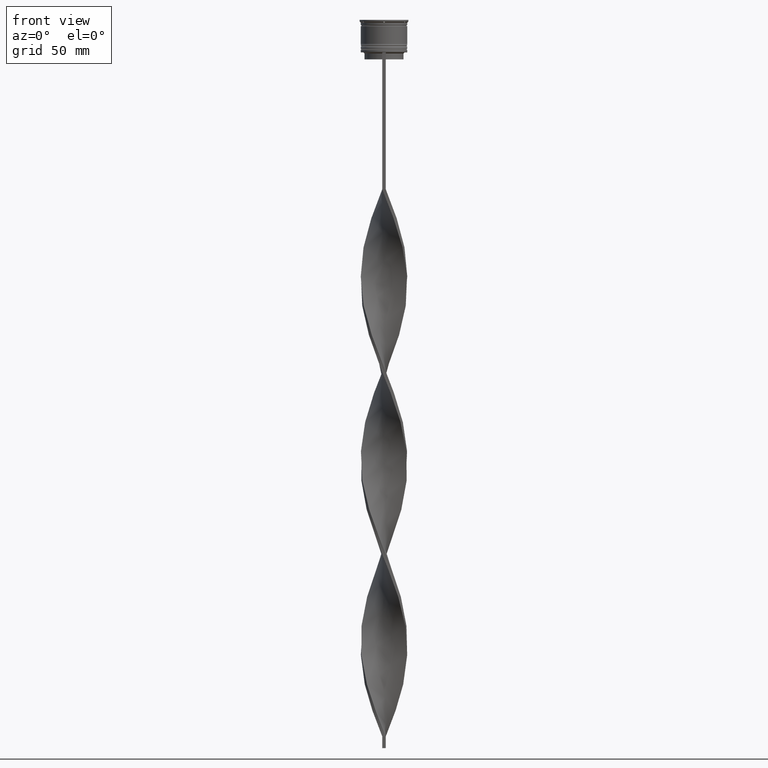
[diagram: clean part render]
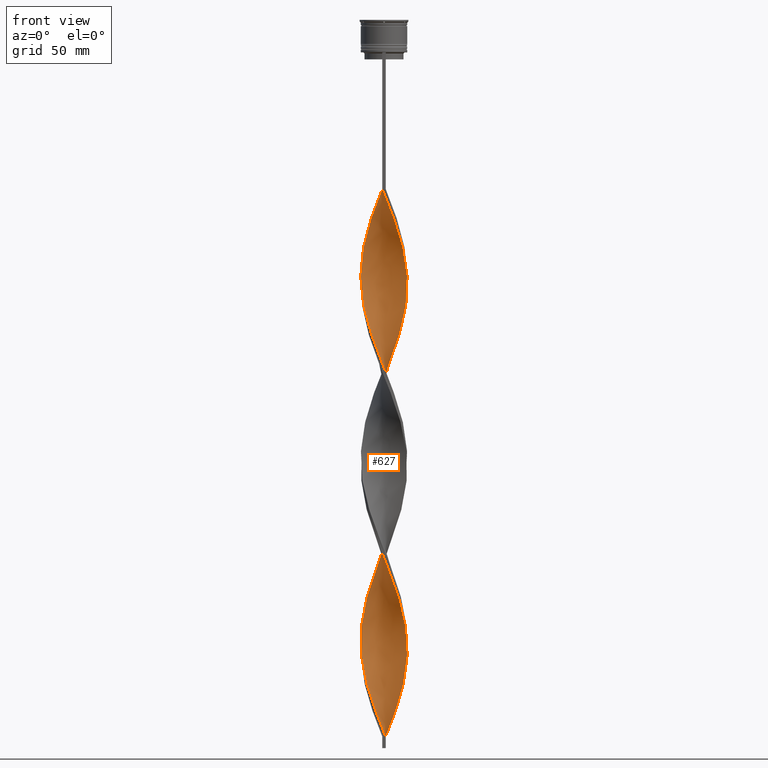
[diagram: same view with one face highlighted and labeled with its STEP entity id]
A machine part, front view. The second image highlights one B-rep face of the part: STEP entity #627.
In plain terms, the highlighted face is a freeform B-spline surface patch.
Its self-contained STEP definition (entity closure, byte-faithful):
#1 = CARTESIAN_POINT ( 'NONE',  ( -4.533719918490549006, -8.979463439879781461, -220.5000000000000284 ) ) ;
#9 = CARTESIAN_POINT ( 'NONE',  ( -0.7499999999999997780, 9.999999999999998224, -73.00000000000001421 ) ) ;
#11 = CARTESIAN_POINT ( 'NONE',  ( -7.601397897755385102, 6.540737725975564132, -92.66666666666667140 ) ) ;
#17 = CARTESIAN_POINT ( 'NONE',  ( 9.929392229344642828, 1.610139721665726942, -275.5666666666666060 ) ) ;
#34 = CARTESIAN_POINT ( 'NONE',  ( 5.942494737169153218, -8.116165120681840150, -248.0333333333333314 ) ) ;
#38 = CARTESIAN_POINT ( 'NONE',  ( -8.159681294278259500, -5.882599862582948091, -283.4333333333333940 ) ) ;
#44 = CARTESIAN_POINT ( 'NONE',  ( 7.601397897755390431, 6.540737725975568573, -289.3333333333333144 ) ) ;
#56 = CARTESIAN_POINT ( 'NONE',  ( -8.569572367079016928, -5.208159890536742331, -124.1333333333333400 ) ) ;
#58 = CARTESIAN_POINT ( 'NONE',  ( 1.537017068246183005, -9.940973719881535331, -153.6333333333333826 ) ) ;
#61 = CARTESIAN_POINT ( 'NONE',  ( 0.03701706824619144937, 10.05902628011846289, -228.3666666666666742 ) ) ;
#68 = CARTESIAN_POINT ( 'NONE',  ( -8.531008882968833973, -5.271089777143521893, -206.7333333333333201 ) ) ;
#79 = CARTESIAN_POINT ( 'NONE',  ( -4.599684817117893232, -8.945852645255818913, -137.9000000000000625 ) ) ;
#83 = CARTESIAN_POINT ( 'NONE',  ( 5.271089777143521893, 8.531008882968826867, -214.5999999999999943 ) ) ;
#90 = CARTESIAN_POINT ( 'NONE',  ( 8.569572367079022257, -5.208159890536745884, -257.8666666666666742 ) ) ;
#98 = CARTESIAN_POINT ( 'NONE',  ( 9.250558116688337051, -3.871650104254192648, -179.1999999999999886 ) ) ;
#103 = CARTESIAN_POINT ( 'NONE',  ( -9.929392229344633947, 1.610139721665727164, -106.4333333333333513 ) ) ;
#105 = CARTESIAN_POINT ( 'NONE',  ( 7.601397897755384214, -6.540737725975565020, -171.3333333333333428 ) ) ;
#120 = CARTESIAN_POINT ( 'NONE',  ( 8.531008882968826867, -5.271089777143521005, -175.2666666666666799 ) ) ;
#128 = CARTESIAN_POINT ( 'NONE',  ( -9.999999999999998224, -0.7499999999999991118, -269.6666666666666856 ) ) ;
#146 = CARTESIAN_POINT ( 'NONE',  ( 7.649331004530118605, 6.484615268705938185, -206.7333333333333201 ) ) ;
#151 = CARTESIAN_POINT ( 'NONE',  ( 7.649331004530123934, -6.484615268705944402, -96.60000000000000853 ) ) ;
#162 = CARTESIAN_POINT ( 'NONE',  ( -7.649331004530118605, -6.484615268705939073, -285.3999999999999773 ) ) ;
#167 = CARTESIAN_POINT ( 'NONE',  ( 9.250558116688344157, 3.871650104254193980, -124.1333333333333400 ) ) ;
#184 = B_SPLINE_CURVE_WITH_KNOTS ( 'NONE', 3,
 ( #202, #2448, #471, #489 ),
 .UNSPECIFIED., .F., .F.,
 ( 4, 4 ),
 ( 0.000000000000000000, 1.000000000000000000 ),
 .UNSPECIFIED. ) ;
#191 = CARTESIAN_POINT ( 'NONE',  ( -2.376877556528109725, -9.742327908732745456, -301.1333333333333258 ) ) ;
#192 = CARTESIAN_POINT ( 'NONE',  ( -9.994209254731556413, -0.8235783949559545292, -194.9333333333333371 ) ) ;
#202 = CARTESIAN_POINT ( 'NONE',  ( 0.7500000000000011102, 10.00000000000000533, -309.0000000000000000 ) ) ;
#207 = CARTESIAN_POINT ( 'NONE',  ( -3.871650104254192648, -9.250558116688337051, -297.2000000000000455 ) ) ;
#212 = CARTESIAN_POINT ( 'NONE',  ( -7.086630674828944265, -7.138980714781980375, -212.6333333333333826 ) ) ;
#217 = CARTESIAN_POINT ( 'NONE',  ( 5.942494737169153218, -8.116165120681841927, -90.70000000000001705 ) ) ;
#230 = CARTESIAN_POINT ( 'NONE',  ( -6.540737725975568573, 7.601397897755391320, -171.3333333333333428 ) ) ;
#237 = CARTESIAN_POINT ( 'NONE',  ( 0.8235783949559563055, -9.994209254731556413, -76.93333333333333712 ) ) ;
#249 = CARTESIAN_POINT ( 'NONE',  ( 7.086630674828940712, 7.138980714781985704, -133.9666666666666686 ) ) ;
#257 = CARTESIAN_POINT ( 'NONE',  ( 2.305110905848663627, 9.759557557171209652, -147.7333333333333201 ) ) ;
#269 = CARTESIAN_POINT ( 'NONE',  ( -4.533719918490539236, 8.979463439879779685, -82.83333333333335702 ) ) ;
#275 = CARTESIAN_POINT ( 'NONE',  ( 10.00000000000000533, -0.7500000000000005551, -112.3333333333333428 ) ) ;
#285 = CARTESIAN_POINT ( 'NONE',  ( 9.759557557171209652, -2.305110905848663627, -265.7333333333333485 ) ) ;
#294 = CARTESIAN_POINT ( 'NONE',  ( 9.929392229344642828, 1.610139721665726942, -118.2333333333333485 ) ) ;
#308 = CARTESIAN_POINT ( 'NONE',  ( 0.7500000000000009992, 10.00000000000000533, -309.0000000000000000 ) ) ;
#318 = CARTESIAN_POINT ( 'NONE',  ( -7.601397897755391320, -6.540737725975566796, -210.6666666666666572 ) ) ;
#330 = CARTESIAN_POINT ( 'NONE',  ( 1.537017068246185891, 9.940973719881544213, -307.0333333333333030 ) ) ;
#333 = CARTESIAN_POINT ( 'NONE',  ( -8.979463439879777908, -4.533719918490539236, -122.1666666666666856 ) ) ;
#344 = CARTESIAN_POINT ( 'NONE',  ( 0.03701706824618504477, -10.05902628011846822, -232.3000000000000398 ) ) ;
#356 = CARTESIAN_POINT ( 'NONE',  ( -7.601397897755385102, 6.540737725975564132, -92.66666666666667140 ) ) ;
#358 = CARTESIAN_POINT ( 'NONE',  ( -3.143615391390492508, -9.555263588120853413, -141.8333333333333428 ) ) ;
#360 = CARTESIAN_POINT ( 'NONE',  ( 9.555263588120851637, -3.143615391390496949, -181.1666666666666856 ) ) ;
#365 = CARTESIAN_POINT ( 'NONE',  ( -9.759557557171209652, 2.305110905848664071, -187.0666666666666629 ) ) ;
#373 = CARTESIAN_POINT ( 'NONE',  ( -7.649331004530118605, -6.484615268705939073, -128.0666666666666629 ) ) ;
#375 = CARTESIAN_POINT ( 'NONE',  ( 0.7499999999999985567, -9.999999999999998224, -151.6666666666666856 ) ) ;
#377 = CARTESIAN_POINT ( 'NONE',  ( 9.759557557171204323, 2.305110905848659630, -194.9333333333333371 ) ) ;
#385 = CARTESIAN_POINT ( 'NONE',  ( -3.803462330970843741, -9.278802417170329164, -222.4666666666666686 ) ) ;
#397 = CARTESIAN_POINT ( 'NONE',  ( 4.533719918490538348, -8.979463439879779685, -161.5000000000000000 ) ) ;
#404 = CARTESIAN_POINT ( 'NONE',  ( 9.250558116688337051, -3.871650104254192648, -179.1999999999999886 ) ) ;
#409 = CARTESIAN_POINT ( 'NONE',  ( -6.540737725975568573, 7.601397897755391320, -171.3333333333333428 ) ) ;
#418 = CARTESIAN_POINT ( 'NONE',  ( -8.159681294278261277, -5.882599862582948980, -126.1000000000000369 ) ) ;
#421 = CARTESIAN_POINT ( 'NONE',  ( 2.305110905848660519, -9.759557557171204323, -155.6000000000000227 ) ) ;
#422 = CARTESIAN_POINT ( 'NONE',  ( -5.208159890536742331, 8.569572367079016928, -242.1333333333333258 ) ) ;
#423 = CARTESIAN_POINT ( 'NONE',  ( 3.871650104254193980, -9.250558116688344157, -84.80000000000001137 ) ) ;
#435 = CARTESIAN_POINT ( 'NONE',  ( 3.143615391390497837, 9.555263588120851637, -220.5000000000000284 ) ) ;
#442 = CARTESIAN_POINT ( 'NONE',  ( -10.05902628011846112, 0.03701706824618515579, -267.6999999999999318 ) ) ;
#449 = CARTESIAN_POINT ( 'NONE',  ( 3.803462330970841965, 9.278802417170329164, -301.1333333333333258 ) ) ;
#458 = CARTESIAN_POINT ( 'NONE',  ( 9.999999999999998224, 0.7499999999999980016, -191.0000000000000000 ) ) ;
#471 = CARTESIAN_POINT ( 'NONE',  ( 0.7499999999999994449, -3.333333333333330373, -309.0000000000000000 ) ) ;
#481 = CARTESIAN_POINT ( 'NONE',  ( 3.073204743451142029, 9.578141394460876867, -145.7666666666666515 ) ) ;
#482 = CARTESIAN_POINT ( 'NONE',  ( 0.7500000000000011102, 10.00000000000000533, -309.0000000000000000 ) ) ;
#489 = CARTESIAN_POINT ( 'NONE',  ( 0.7499999999999985567, -9.999999999999998224, -309.0000000000000000 ) ) ;
#494 = CARTESIAN_POINT ( 'NONE',  ( -6.540737725975564132, -7.601397897755384214, -289.3333333333333144 ) ) ;
#500 = CARTESIAN_POINT ( 'NONE',  ( -7.649331004530122158, 6.484615268705946178, -175.2666666666666799 ) ) ;
#503 = VECTOR ( 'NONE', #2615, 1000.000000000000000 ) ;
#517 = CARTESIAN_POINT ( 'NONE',  ( -5.271089777143521005, -8.531008882968826867, -293.2666666666666515 ) ) ;
#525 = CARTESIAN_POINT ( 'NONE',  ( 5.882599862582953421, 8.159681294278264829, -137.9000000000000625 ) ) ;
#526 = CARTESIAN_POINT ( 'NONE',  ( 1.537017068246186113, 9.940973719881544213, -307.0333333333333030 ) ) ;
#544 = CARTESIAN_POINT ( 'NONE',  ( -9.555263588120853413, 3.143615391390492064, -259.8333333333334281 ) ) ;
#550 = CARTESIAN_POINT ( 'NONE',  ( 5.208159890536745884, 8.569572367079022257, -139.8666666666666742 ) ) ;
#557 = CARTESIAN_POINT ( 'NONE',  ( 8.159681294278264829, -5.882599862582952532, -98.56666666666669130 ) ) ;
#569 = CARTESIAN_POINT ( 'NONE',  ( -9.742327908732752562, -2.376877556528108837, -198.8666666666666742 ) ) ;
#579 = CARTESIAN_POINT ( 'NONE',  ( 7.138980714781985704, -7.086630674828939824, -94.63333333333335418 ) ) ;
#591 = CARTESIAN_POINT ( 'NONE',  ( -9.999999999999998224, -0.7499999999999991118, -112.3333333333333428 ) ) ;
#601 = CARTESIAN_POINT ( 'NONE',  ( -0.03701706824618385128, 10.05902628011846822, -153.6333333333333826 ) ) ;
#614 = CARTESIAN_POINT ( 'NONE',  ( 8.945852645255826019, 4.599684817117895896, -283.4333333333333940 ) ) ;
#624 = CARTESIAN_POINT ( 'NONE',  ( 9.278802417170329164, -3.803462330970841521, -104.4666666666666828 ) ) ;
#627 = ADVANCED_FACE ( 'NONE', ( #1703 ), #3927, .T. ) ;
#634 = CARTESIAN_POINT ( 'NONE',  ( 8.531008882968833973, 5.271089777143522781, -285.3999999999999773 ) ) ;
#642 = CARTESIAN_POINT ( 'NONE',  ( -8.569572367079022257, 5.208159890536746772, -179.1999999999999886 ) ) ;
#656 = CARTESIAN_POINT ( 'NONE',  ( -5.882599862582948980, 8.159681294278261277, -86.76666666666666572 ) ) ;
#658 = CARTESIAN_POINT ( 'NONE',  ( -6.484615268705940849, 7.649331004530118605, -88.73333333333334849 ) ) ;
#665 = CARTESIAN_POINT ( 'NONE',  ( -5.271089777143522781, 8.531008882968833973, -167.4000000000000057 ) ) ;
#677 = CARTESIAN_POINT ( 'NONE',  ( -9.929392229344633947, 1.610139721665727164, -106.4333333333333513 ) ) ;
#680 = CARTESIAN_POINT ( 'NONE',  ( -3.073204743451139365, 9.578141394460869762, -78.90000000000001990 ) ) ;
#687 = CARTESIAN_POINT ( 'NONE',  ( -9.742327908732752562, -2.376877556528108837, -198.8666666666666742 ) ) ;
#699 = CARTESIAN_POINT ( 'NONE',  ( 7.138980714781978598, 7.086630674828938936, -208.7000000000000171 ) ) ;
#702 = CARTESIAN_POINT ( 'NONE',  ( 10.05902628011846289, -0.03701706824619090813, -189.0333333333333314 ) ) ;
#709 = CARTESIAN_POINT ( 'NONE',  ( -9.578141394460878644, 3.073204743451138921, -185.0999999999999943 ) ) ;
#721 = CARTESIAN_POINT ( 'NONE',  ( 5.208159890536741443, -8.569572367079016928, -163.4666666666666401 ) ) ;
#726 = CARTESIAN_POINT ( 'NONE',  ( 7.086630674828934495, -7.138980714781981263, -169.3666666666667027 ) ) ;
#733 = CARTESIAN_POINT ( 'NONE',  ( 9.742327908732752562, 2.376877556528110169, -277.5333333333333030 ) ) ;
#745 = CARTESIAN_POINT ( 'NONE',  ( 6.484615268705939073, -7.649331004530118605, -167.4000000000000057 ) ) ;
#748 = CARTESIAN_POINT ( 'NONE',  ( -3.871650104254192648, -9.250558116688337051, -139.8666666666666742 ) ) ;
#751 = CARTESIAN_POINT ( 'NONE',  ( -9.742327908732745456, 2.376877556528109725, -261.7999999999999545 ) ) ;
#752 = CARTESIAN_POINT ( 'NONE',  ( 2.376877556528110169, -9.742327908732750785, -80.86666666666667425 ) ) ;
#767 = CARTESIAN_POINT ( 'NONE',  ( 6.540737725975565020, 7.601397897755383326, -210.6666666666666572 ) ) ;
#771 = CARTESIAN_POINT ( 'NONE',  ( -5.882599862582948091, 8.159681294278259500, -244.0999999999999943 ) ) ;
#783 = CARTESIAN_POINT ( 'NONE',  ( 9.742327908732745456, -2.376877556528110169, -183.1333333333333258 ) ) ;
#790 = CARTESIAN_POINT ( 'NONE',  ( -9.278802417170323835, -3.803462330970837968, -277.5333333333333030 ) ) ;
#830 = CARTESIAN_POINT ( 'NONE',  ( -0.8235783949559565276, -9.994209254731547531, -305.0666666666666629 ) ) ;
#836 = CARTESIAN_POINT ( 'NONE',  ( 9.742327908732752562, 2.376877556528110169, -120.2000000000000028 ) ) ;
#850 = VERTEX_POINT ( 'NONE', #482 ) ;
#851 = CARTESIAN_POINT ( 'NONE',  ( -6.484615268705940849, 7.649331004530118605, -246.0666666666666629 ) ) ;
#859 = CARTESIAN_POINT ( 'NONE',  ( -8.531008882968833973, -5.271089777143521893, -206.7333333333333201 ) ) ;
#872 = CARTESIAN_POINT ( 'NONE',  ( 0.7499999999999985567, -9.999999999999998224, -309.0000000000000000 ) ) ;
#877 = CARTESIAN_POINT ( 'NONE',  ( -6.484615268705947067, -7.649331004530122158, -214.5999999999999943 ) ) ;
#887 = CARTESIAN_POINT ( 'NONE',  ( 8.531008882968833973, 5.271089777143522781, -128.0666666666666629 ) ) ;
#896 = CARTESIAN_POINT ( 'NONE',  ( -0.03701706824618591213, -10.05902628011846112, -307.0333333333333030 ) ) ;
#898 = CARTESIAN_POINT ( 'NONE',  ( -5.882599862582950756, -8.159681294278264829, -216.5666666666666629 ) ) ;
#903 = CARTESIAN_POINT ( 'NONE',  ( 5.208159890536745884, 8.569572367079022257, -139.8666666666666742 ) ) ;
#914 = CARTESIAN_POINT ( 'NONE',  ( 9.578141394460876867, -3.073204743451141585, -106.4333333333333513 ) ) ;
#924 = CARTESIAN_POINT ( 'NONE',  ( 0.03701706824618504477, -10.05902628011846822, -74.96666666666668277 ) ) ;
#932 = EDGE_LOOP ( 'NONE', ( #2174, #2473, #3216, #1917 ) ) ;
#936 = CARTESIAN_POINT ( 'NONE',  ( 9.994209254731556413, 0.8235783949559557504, -273.5999999999999659 ) ) ;
#947 = CARTESIAN_POINT ( 'NONE',  ( 6.540737725975569461, -7.601397897755390431, -92.66666666666667140 ) ) ;
#958 = CARTESIAN_POINT ( 'NONE',  ( -9.250558116688337051, 3.871650104254192204, -100.5333333333333314 ) ) ;
#965 = CARTESIAN_POINT ( 'NONE',  ( 9.742327908732752562, 2.376877556528110169, -120.2000000000000028 ) ) ;
#976 = CARTESIAN_POINT ( 'NONE',  ( -8.116165120681836598, 5.942494737169148777, -94.63333333333335418 ) ) ;
#986 = CARTESIAN_POINT ( 'NONE',  ( 3.871650104254193980, -9.250558116688344157, -242.1333333333333258 ) ) ;
#1000 = CARTESIAN_POINT ( 'NONE',  ( 2.305110905848663627, 9.759557557171209652, -305.0666666666666629 ) ) ;
#1002 = CARTESIAN_POINT ( 'NONE',  ( -8.116165120681836598, 5.942494737169148777, -94.63333333333335418 ) ) ;
#1008 = CARTESIAN_POINT ( 'NONE',  ( 8.531008882968833973, 5.271089777143522781, -285.3999999999999773 ) ) ;
#1020 = CARTESIAN_POINT ( 'NONE',  ( -9.742327908732745456, 2.376877556528109725, -104.4666666666666828 ) ) ;
#1022 = CARTESIAN_POINT ( 'NONE',  ( -0.8235783949559565276, -9.994209254731547531, -147.7333333333333201 ) ) ;
#1023 = CARTESIAN_POINT ( 'NONE',  ( 9.742327908732745456, -2.376877556528110169, -183.1333333333333258 ) ) ;
#1029 = CARTESIAN_POINT ( 'NONE',  ( -8.945852645255827795, -4.599684817117891455, -204.7666666666666799 ) ) ;
#1038 = CARTESIAN_POINT ( 'NONE',  ( 2.305110905848660519, -9.759557557171204323, -155.6000000000000227 ) ) ;
#1040 = CARTESIAN_POINT ( 'NONE',  ( -4.533719918490539236, 8.979463439879777908, -82.83333333333335702 ) ) ;
#1041 = CARTESIAN_POINT ( 'NONE',  ( 9.940973719881535331, 1.537017068246186779, -192.9666666666666970 ) ) ;
#1048 = CARTESIAN_POINT ( 'NONE',  ( 9.940973719881544213, -1.537017068246185447, -267.6999999999999318 ) ) ;
#1057 = CARTESIAN_POINT ( 'NONE',  ( -2.376877556528109725, -9.742327908732745456, -143.7999999999999829 ) ) ;
#1060 = CARTESIAN_POINT ( 'NONE',  ( -0.7499999999999997780, 9.999999999999998224, -73.00000000000001421 ) ) ;
#1064 = CARTESIAN_POINT ( 'NONE',  ( -9.250558116688337051, 3.871650104254192204, -257.8666666666666742 ) ) ;
#1067 = CARTESIAN_POINT ( 'NONE',  ( 0.03701706824618514885, -10.05902628011846822, -74.96666666666668277 ) ) ;
#1082 = CARTESIAN_POINT ( 'NONE',  ( -3.143615391390492508, -9.555263588120853413, -141.8333333333333144 ) ) ;
#1085 = CARTESIAN_POINT ( 'NONE',  ( 4.533719918490538348, -8.979463439879777908, -161.5000000000000000 ) ) ;
#1087 = CARTESIAN_POINT ( 'NONE',  ( 0.8235783949559576378, 9.994209254731547531, -226.3999999999999773 ) ) ;
#1105 = CARTESIAN_POINT ( 'NONE',  ( -2.305110905848661851, 9.759557557171204323, -234.2666666666666515 ) ) ;
#1109 = CARTESIAN_POINT ( 'NONE',  ( 2.376877556528111057, 9.742327908732745456, -222.4666666666666686 ) ) ;
#1123 = CARTESIAN_POINT ( 'NONE',  ( -8.159681294278261277, -5.882599862582948980, -283.4333333333333940 ) ) ;
#1150 = CARTESIAN_POINT ( 'NONE',  ( -5.942494737169152330, 8.116165120681840150, -169.3666666666667027 ) ) ;
#1170 = CARTESIAN_POINT ( 'NONE',  ( -7.138980714781982151, 7.086630674828944265, -173.3000000000000114 ) ) ;
#1182 = CARTESIAN_POINT ( 'NONE',  ( -9.278802417170323835, -3.803462330970837968, -277.5333333333333030 ) ) ;
#1187 = CARTESIAN_POINT ( 'NONE',  ( -7.601397897755391320, -6.540737725975566796, -210.6666666666666572 ) ) ;
#1212 = CARTESIAN_POINT ( 'NONE',  ( 10.05902628011846822, 0.03701706824618451047, -114.3000000000000398 ) ) ;
#1219 = CARTESIAN_POINT ( 'NONE',  ( 6.484615268705946178, 7.649331004530122158, -135.9333333333333371 ) ) ;
#1230 = CARTESIAN_POINT ( 'NONE',  ( -3.143615391390492952, 9.555263588120860518, -161.5000000000000000 ) ) ;
#1237 = CARTESIAN_POINT ( 'NONE',  ( 0.7500000000000011102, 10.00000000000000533, -151.6666666666666856 ) ) ;
#1252 = CARTESIAN_POINT ( 'NONE',  ( 8.979463439879786790, -4.533719918490542788, -259.8333333333334281 ) ) ;
#1271 = CARTESIAN_POINT ( 'NONE',  ( 3.073204743451142029, 9.578141394460876867, -303.0999999999999659 ) ) ;
#1292 = CARTESIAN_POINT ( 'NONE',  ( -3.803462330970837968, 9.278802417170323835, -80.86666666666667425 ) ) ;
#1301 = CARTESIAN_POINT ( 'NONE',  ( 5.271089777143523669, -8.531008882968833973, -246.0666666666666629 ) ) ;
#1312 = CARTESIAN_POINT ( 'NONE',  ( -8.945852645255818913, 4.599684817117893232, -98.56666666666669130 ) ) ;
#1322 = CARTESIAN_POINT ( 'NONE',  ( -6.484615268705947067, -7.649331004530122158, -214.5999999999999943 ) ) ;
#1335 = CARTESIAN_POINT ( 'NONE',  ( -9.940973719881535331, -1.537017068246183449, -114.3000000000000398 ) ) ;
#1338 = CARTESIAN_POINT ( 'NONE',  ( -7.649331004530118605, -6.484615268705939073, -285.3999999999999773 ) ) ;
#1343 = CARTESIAN_POINT ( 'NONE',  ( -7.138980714781982151, 7.086630674828944265, -173.3000000000000114 ) ) ;
#1355 = CARTESIAN_POINT ( 'NONE',  ( 9.994209254731547531, -0.8235783949559571937, -187.0666666666666629 ) ) ;
#1357 = CARTESIAN_POINT ( 'NONE',  ( -9.578141394460871538, -3.073204743451138476, -118.2333333333333485 ) ) ;
#1359 = CARTESIAN_POINT ( 'NONE',  ( -4.533719918490539236, 8.979463439879777908, -240.1666666666666856 ) ) ;
#1364 = CARTESIAN_POINT ( 'NONE',  ( 0.8235783949559563055, -9.994209254731556413, -234.2666666666666515 ) ) ;
#1375 = CARTESIAN_POINT ( 'NONE',  ( 8.979463439879777908, 4.533719918490541900, -200.8333333333333428 ) ) ;
#1380 = CARTESIAN_POINT ( 'NONE',  ( -2.305110905848661851, 9.759557557171204323, -234.2666666666666515 ) ) ;
#1386 = CARTESIAN_POINT ( 'NONE',  ( -5.942494737169152330, 8.116165120681841927, -169.3666666666667027 ) ) ;
#1396 = CARTESIAN_POINT ( 'NONE',  ( 8.116165120681834821, -5.942494737169153218, -173.3000000000000114 ) ) ;
#1399 = CARTESIAN_POINT ( 'NONE',  ( 3.803462330970837524, -9.278802417170323835, -159.5333333333333314 ) ) ;
#1401 = CARTESIAN_POINT ( 'NONE',  ( 1.610139721665724055, 9.929392229344635723, -224.4333333333333371 ) ) ;
#1418 = CARTESIAN_POINT ( 'NONE',  ( 0.8235783949559576378, 9.994209254731547531, -226.3999999999999773 ) ) ;
#1424 = CARTESIAN_POINT ( 'NONE',  ( -9.759557557171204323, -2.305110905848660963, -273.5999999999999659 ) ) ;
#1438 = CARTESIAN_POINT ( 'NONE',  ( -3.871650104254192648, -9.250558116688337051, -139.8666666666666742 ) ) ;
#1455 = CARTESIAN_POINT ( 'NONE',  ( -9.999999999999998224, -0.7499999999999991118, -269.6666666666666856 ) ) ;
#1463 = CARTESIAN_POINT ( 'NONE',  ( 8.945852645255826019, 4.599684817117895896, -126.1000000000000369 ) ) ;
#1479 = CARTESIAN_POINT ( 'NONE',  ( -9.250558116688337051, 3.871650104254192204, -257.8666666666666742 ) ) ;
#1484 = CARTESIAN_POINT ( 'NONE',  ( -3.871650104254192648, -9.250558116688337051, -297.2000000000000455 ) ) ;
#1485 = CARTESIAN_POINT ( 'NONE',  ( -9.929392229344642828, -1.610139721665721391, -196.9000000000000057 ) ) ;
#1507 = CARTESIAN_POINT ( 'NONE',  ( -5.942494737169149666, -8.116165120681838374, -291.3000000000000682 ) ) ;
#1508 = CARTESIAN_POINT ( 'NONE',  ( -2.376877556528109725, 9.742327908732752562, -159.5333333333333314 ) ) ;
#1515 = CARTESIAN_POINT ( 'NONE',  ( 7.649331004530123934, -6.484615268705944402, -96.60000000000000853 ) ) ;
#1524 = CARTESIAN_POINT ( 'NONE',  ( -9.994209254731549308, 0.8235783949559557504, -265.7333333333333485 ) ) ;
#1531 = CARTESIAN_POINT ( 'NONE',  ( -8.159681294278266606, 5.882599862582949868, -177.2333333333333485 ) ) ;
#1541 = CARTESIAN_POINT ( 'NONE',  ( 8.116165120681841927, 5.942494737169152330, -130.0333333333333314 ) ) ;
#1546 = CARTESIAN_POINT ( 'NONE',  ( -9.929392229344633947, 1.610139721665727164, -263.7666666666667652 ) ) ;
#1552 = CARTESIAN_POINT ( 'NONE',  ( -1.610139721665726720, 9.929392229344641052, -157.5666666666666629 ) ) ;
#1571 = CARTESIAN_POINT ( 'NONE',  ( -5.208159890536742331, 8.569572367079016928, -84.80000000000001137 ) ) ;
#1577 = CARTESIAN_POINT ( 'NONE',  ( -2.376877556528109725, 9.742327908732752562, -159.5333333333333314 ) ) ;
#1588 = CARTESIAN_POINT ( 'NONE',  ( 8.116165120681840150, 5.942494737169152330, -287.3666666666667311 ) ) ;
#1599 = CARTESIAN_POINT ( 'NONE',  ( 8.569572367079022257, -5.208159890536745884, -100.5333333333333314 ) ) ;
#1609 = CARTESIAN_POINT ( 'NONE',  ( -1.537017068246184115, 9.940973719881535331, -74.96666666666668277 ) ) ;
#1621 = CARTESIAN_POINT ( 'NONE',  ( -9.555263588120858742, -3.143615391390496505, -200.8333333333333428 ) ) ;
#1634 = CARTESIAN_POINT ( 'NONE',  ( -7.086630674828936272, 7.138980714781979486, -90.70000000000001705 ) ) ;
#1637 = CARTESIAN_POINT ( 'NONE',  ( -4.599684817117893232, -8.945852645255820690, -137.9000000000000625 ) ) ;
#1645 = CARTESIAN_POINT ( 'NONE',  ( 9.994209254731556413, 0.8235783949559556394, -273.5999999999999659 ) ) ;
#1653 = CARTESIAN_POINT ( 'NONE',  ( 0.03701706824618514885, -10.05902628011846822, -232.3000000000000114 ) ) ;
#1655 = CARTESIAN_POINT ( 'NONE',  ( -9.742327908732745456, 2.376877556528109725, -104.4666666666666828 ) ) ;
#1656 = CARTESIAN_POINT ( 'NONE',  ( -8.979463439879777908, -4.533719918490539236, -279.4999999999999432 ) ) ;
#1664 = CARTESIAN_POINT ( 'NONE',  ( 9.250558116688344157, 3.871650104254193980, -281.4666666666666401 ) ) ;
#1676 = CARTESIAN_POINT ( 'NONE',  ( 9.278802417170323835, 3.803462330970836636, -198.8666666666666742 ) ) ;
#1678 = CARTESIAN_POINT ( 'NONE',  ( 9.929392229344635723, -1.610139721665723833, -185.0999999999999943 ) ) ;
#1685 = CARTESIAN_POINT ( 'NONE',  ( -8.979463439879781461, 4.533719918490548118, -181.1666666666666856 ) ) ;
#1698 = CARTESIAN_POINT ( 'NONE',  ( 5.882599862582947203, -8.159681294278261277, -165.4333333333333655 ) ) ;
#1701 = CARTESIAN_POINT ( 'NONE',  ( -7.086630674828935383, 7.138980714781979486, -90.70000000000001705 ) ) ;
#1702 = CARTESIAN_POINT ( 'NONE',  ( 8.159681294278261277, 5.882599862582942762, -204.7666666666666799 ) ) ;
#1703 = FACE_OUTER_BOUND ( 'NONE', #932, .T. ) ;
#1708 = CARTESIAN_POINT ( 'NONE',  ( 8.159681294278264829, -5.882599862582952532, -255.9000000000000625 ) ) ;
#1715 = CARTESIAN_POINT ( 'NONE',  ( 7.086630674828935383, -7.138980714781981263, -169.3666666666667027 ) ) ;
#1719 = CARTESIAN_POINT ( 'NONE',  ( 8.569572367079016928, 5.208159890536742331, -202.8000000000000114 ) ) ;
#1720 = CARTESIAN_POINT ( 'NONE',  ( 6.540737725975569461, -7.601397897755390431, -92.66666666666667140 ) ) ;
#1734 = CARTESIAN_POINT ( 'NONE',  ( 8.159681294278263053, 5.882599862582942762, -204.7666666666666799 ) ) ;
#1740 = CARTESIAN_POINT ( 'NONE',  ( 9.994209254731547531, -0.8235783949559571937, -187.0666666666666629 ) ) ;
#1756 = CARTESIAN_POINT ( 'NONE',  ( -3.803462330970837968, 9.278802417170323835, -238.1999999999999886 ) ) ;
#1778 = CARTESIAN_POINT ( 'NONE',  ( -0.03701706824618396924, 10.05902628011846822, -153.6333333333333826 ) ) ;
#1788 = CARTESIAN_POINT ( 'NONE',  ( -8.979463439879779685, -4.533719918490539236, -279.4999999999999432 ) ) ;
#1795 = CARTESIAN_POINT ( 'NONE',  ( -9.940973719881542436, 1.537017068246190998, -189.0333333333333314 ) ) ;
#1821 = CARTESIAN_POINT ( 'NONE',  ( -3.143615391390492508, -9.555263588120853413, -299.1666666666666856 ) ) ;
#1823 = CARTESIAN_POINT ( 'NONE',  ( 10.00000000000000533, -0.7500000000000004441, -112.3333333333333428 ) ) ;
#1825 = CARTESIAN_POINT ( 'NONE',  ( 4.533719918490543677, 8.979463439879785014, -299.1666666666666856 ) ) ;
#1837 = CARTESIAN_POINT ( 'NONE',  ( -3.143615391390492508, -9.555263588120853413, -299.1666666666666856 ) ) ;
#1844 = CARTESIAN_POINT ( 'NONE',  ( 8.531008882968833973, 5.271089777143522781, -128.0666666666666629 ) ) ;
#1861 = CARTESIAN_POINT ( 'NONE',  ( -10.05902628011846822, -0.03701706824618775094, -192.9666666666666970 ) ) ;
#1871 = CARTESIAN_POINT ( 'NONE',  ( 3.073204743451142029, 9.578141394460876867, -145.7666666666666515 ) ) ;
#1883 = CARTESIAN_POINT ( 'NONE',  ( 6.540737725975569461, -7.601397897755390431, -250.0000000000000000 ) ) ;
#1894 = CARTESIAN_POINT ( 'NONE',  ( -0.8235783949559550843, 9.994209254731556413, -155.6000000000000227 ) ) ;
#1906 = CARTESIAN_POINT ( 'NONE',  ( -3.073204743451139365, 9.578141394460869762, -78.90000000000003411 ) ) ;
#1914 = CARTESIAN_POINT ( 'NONE',  ( -3.143615391390492952, 9.555263588120860518, -161.5000000000000000 ) ) ;
#1917 = ORIENTED_EDGE ( 'NONE', *, *, #3110, .F. ) ;
#1927 = CARTESIAN_POINT ( 'NONE',  ( 2.376877556528110169, -9.742327908732750785, -238.1999999999999886 ) ) ;
#1938 = CARTESIAN_POINT ( 'NONE',  ( -9.278802417170329164, 3.803462330970842409, -183.1333333333333258 ) ) ;
#1952 = CARTESIAN_POINT ( 'NONE',  ( 7.138980714781985704, -7.086630674828940712, -251.9666666666666970 ) ) ;
#1955 = CARTESIAN_POINT ( 'NONE',  ( -9.555263588120853413, 3.143615391390492064, -102.5000000000000142 ) ) ;
#1965 = CARTESIAN_POINT ( 'NONE',  ( 3.143615391390493841, -9.555263588120860518, -240.1666666666666856 ) ) ;
#1979 = CARTESIAN_POINT ( 'NONE',  ( -10.05902628011846112, 0.03701706824618514885, -110.3666666666666600 ) ) ;
#1981 = CARTESIAN_POINT ( 'NONE',  ( -10.05902628011846112, 0.03701706824618515579, -110.3666666666666742 ) ) ;
#1990 = CARTESIAN_POINT ( 'NONE',  ( -9.929392229344644605, -1.610139721665721391, -196.9000000000000057 ) ) ;
#2002 = CARTESIAN_POINT ( 'NONE',  ( 9.940973719881535331, 1.537017068246186557, -192.9666666666666970 ) ) ;
#2004 = CARTESIAN_POINT ( 'NONE',  ( -5.942494737169149666, -8.116165120681838374, -133.9666666666666686 ) ) ;
#2006 = CARTESIAN_POINT ( 'NONE',  ( -6.540737725975564132, -7.601397897755384214, -289.3333333333333144 ) ) ;
#2012 = CARTESIAN_POINT ( 'NONE',  ( -7.086630674828944265, -7.138980714781980375, -212.6333333333333826 ) ) ;
#2026 = CARTESIAN_POINT ( 'NONE',  ( 9.555263588120851637, -3.143615391390496949, -181.1666666666667140 ) ) ;
#2029 = CARTESIAN_POINT ( 'NONE',  ( -8.569572367079016928, -5.208159890536742331, -124.1333333333333400 ) ) ;
#2030 = CARTESIAN_POINT ( 'NONE',  ( 7.138980714781978598, 7.086630674828938048, -208.7000000000000171 ) ) ;
#2037 = CARTESIAN_POINT ( 'NONE',  ( 8.116165120681841927, 5.942494737169152330, -287.3666666666667311 ) ) ;
#2050 = CARTESIAN_POINT ( 'NONE',  ( 9.759557557171204323, 2.305110905848659630, -194.9333333333333371 ) ) ;
#2054 = CARTESIAN_POINT ( 'NONE',  ( -2.376877556528109725, -9.742327908732745456, -143.7999999999999829 ) ) ;
#2055 = CARTESIAN_POINT ( 'NONE',  ( -9.929392229344633947, 1.610139721665727164, -263.7666666666667084 ) ) ;
#2061 = CARTESIAN_POINT ( 'NONE',  ( 7.086630674828940712, 7.138980714781985704, -291.3000000000000682 ) ) ;
#2070 = VERTEX_POINT ( 'NONE', #4206 ) ;
#2073 = CARTESIAN_POINT ( 'NONE',  ( -5.271089777143521005, -8.531008882968826867, -135.9333333333333371 ) ) ;
#2077 = CARTESIAN_POINT ( 'NONE',  ( -8.116165120681836598, 5.942494737169148777, -251.9666666666666686 ) ) ;
#2094 = CARTESIAN_POINT ( 'NONE',  ( -3.073204743451139365, 9.578141394460869762, -236.2333333333333769 ) ) ;
#2100 = CARTESIAN_POINT ( 'NONE',  ( 3.871650104254193536, 9.250558116688337051, -218.5333333333333314 ) ) ;
#2104 = CARTESIAN_POINT ( 'NONE',  ( 3.073204743451142029, 9.578141394460876867, -303.0999999999999659 ) ) ;
#2118 =( BOUNDED_CURVE ( )  B_SPLINE_CURVE ( 2, ( #1060, #2685, #4020, #680, #3973, #1040, #4039, #2352, #658, #1701, #11, #1002, #2660, #2334, #3018, #1955, #1655, #103, #3694, #1981, #4064, #2375, #3652, #1357, #3297, #333, #2029, #3320, #3365, #3389, #3041, #2004, #3717, #1637, #748, #358, #2054, #2995, #1022, #3340, #375, #58, #421, #3063, #1399, #1085, #3627, #4021, #3366, #726, #105, #2353, #3759, #3390, #404, #360, #1023, #1678, #1740, #702, #3342, #1041, #377, #3043, #2687, #3699, #1719, #1702, #4000, #2030, #3021, #3086, #83, #2726, #2100, #4066, #1109, #1401, #1087, #61, #2417, #2335, #1380, #2397, #3740, #1359, #422, #771, #4088, #2704, #3719, #2077, #4041, #3065, #1064, #2376, #751, #2055, #3405, #442, #128, #3677, #1424, #2751, #790, #1656, #2996, #38, #1338, #2661, #2006, #1507, #3121, #4194, #1484, #1821, #191, #2815, #2523, #896, #4170 ),
 .UNSPECIFIED., .F., .T. ) 
 B_SPLINE_CURVE_WITH_KNOTS ( ( 3, 2, 2, 2, 2, 2, 2, 2, 2, 2, 2, 2, 2, 2, 2, 2, 2, 2, 2, 2, 2, 2, 2, 2, 2, 2, 2, 2, 2, 2, 2, 2, 2, 2, 2, 2, 2, 2, 2, 2, 2, 2, 2, 2, 2, 2, 2, 2, 2, 2, 2, 2, 2, 2, 2, 2, 2, 2, 2, 2, 3 ),
 ( 0.000000000000000000, 0.01250000000000000243, 0.02500000000000000486, 0.03749999999999999861, 0.05000000000000000971, 0.06250000000000000000, 0.07499999999999999722, 0.08749999999999998057, 0.1000000000000000194, 0.1125000000000000028, 0.1250000000000000000, 0.1375000000000000111, 0.1499999999999999944, 0.1625000000000000056, 0.1749999999999999611, 0.1875000000000000000, 0.2000000000000000389, 0.2124999999999999944, 0.2250000000000000056, 0.2374999999999999611, 0.2500000000000000000, 0.2625000000000000111, 0.2750000000000000222, 0.2874999999999999778, 0.2999999999999999889, 0.3125000000000000000, 0.3250000000000000111, 0.3375000000000000777, 0.3499999999999999223, 0.3624999999999999889, 0.3750000000000000000, 0.3875000000000000111, 0.4000000000000000777, 0.4124999999999999223, 0.4249999999999999889, 0.4375000000000000000, 0.4500000000000000111, 0.4625000000000000777, 0.4749999999999999223, 0.4874999999999999889, 0.5000000000000000000, 0.5124999999999999556, 0.5250000000000000222, 0.5374999999999999778, 0.5500000000000000444, 0.5625000000000000000, 0.5749999999999999556, 0.5875000000000000222, 0.5999999999999999778, 0.6125000000000000444, 0.6250000000000000000, 0.6374999999999999556, 0.6500000000000000222, 0.6624999999999999778, 0.6750000000000001554, 0.6875000000000000000, 0.6999999999999998446, 0.7125000000000000222, 0.7249999999999999778, 0.7375000000000001554, 0.7500000000000000000 ),
 .UNSPECIFIED. ) 
 CURVE ( )  GEOMETRIC_REPRESENTATION_ITEM ( )  RATIONAL_B_SPLINE_CURVE ( ( 1.000000000000000000, 0.9969173337331279638, 1.000000000000000000, 0.9969173337331279638, 1.000000000000000000, 0.9969173337331279638, 1.000000000000000000, 0.9969173337331279638, 1.000000000000000000, 0.9969173337331279638, 1.000000000000000000, 0.9969173337331279638, 1.000000000000000000, 0.9969173337331279638, 1.000000000000000000, 0.9969173337331279638, 1.000000000000000000, 0.9969173337331279638, 1.000000000000000000, 0.9969173337331279638, 1.000000000000000000, 0.9969173337331279638, 1.000000000000000000, 0.9969173337331279638, 1.000000000000000000, 0.9969173337331279638, 1.000000000000000000, 0.9969173337331279638, 1.000000000000000000, 0.9969173337331279638, 1.000000000000000000, 0.9969173337331279638, 1.000000000000000000, 0.9969173337331279638, 1.000000000000000000, 0.9969173337331279638, 1.000000000000000000, 0.9969173337331279638, 1.000000000000000000, 0.9969173337331279638, 1.000000000000000000, 0.9969173337331279638, 1.000000000000000000, 0.9969173337331279638, 1.000000000000000000, 0.9969173337331279638, 1.000000000000000000, 0.9969173337331279638, 1.000000000000000000, 0.9969173337331279638, 1.000000000000000000, 0.9969173337331279638, 1.000000000000000000, 0.9969173337331279638, 1.000000000000000000, 0.9969173337331279638, 1.000000000000000000, 0.9969173337331279638, 1.000000000000000000, 0.9969173337331279638, 1.000000000000000000, 0.9969173337331279638, 1.000000000000000000, 0.9969173337331279638, 1.000000000000000000, 0.9969173337331279638, 1.000000000000000000, 0.9969173337331279638, 1.000000000000000000, 0.9969173337331279638, 1.000000000000000000, 0.9969173337331279638, 1.000000000000000000, 0.9969173337331279638, 1.000000000000000000, 0.9969173337331279638, 1.000000000000000000, 0.9969173337331279638, 1.000000000000000000, 0.9969173337331279638, 1.000000000000000000, 0.9969173337331279638, 1.000000000000000000, 0.9969173337331279638, 1.000000000000000000, 0.9969173337331279638, 1.000000000000000000, 0.9969173337331279638, 1.000000000000000000, 0.9969173337331279638, 1.000000000000000000, 0.9969173337331279638, 1.000000000000000000, 0.9969173337331279638, 1.000000000000000000, 0.9969173337331279638, 1.000000000000000000, 0.9969173337331279638, 1.000000000000000000, 0.9969173337331279638, 1.000000000000000000, 0.9969173337331279638, 1.000000000000000000, 0.9969173337331279638, 1.000000000000000000, 0.9969173337331279638, 1.000000000000000000, 0.9969173337331279638, 1.000000000000000000, 0.9969173337331279638, 1.000000000000000000, 0.9969173337331279638, 1.000000000000000000, 0.9969173337331279638, 1.000000000000000000, 0.9969173337331279638, 1.000000000000000000, 0.9969173337331279638, 1.000000000000000000, 0.9969173337331279638, 1.000000000000000000 ) ) 
 REPRESENTATION_ITEM ( '' )  );
#2139 = CARTESIAN_POINT ( 'NONE',  ( 8.116165120681840150, 5.942494737169152330, -130.0333333333333314 ) ) ;
#2154 = CARTESIAN_POINT ( 'NONE',  ( -10.05902628011846112, 0.03701706824618514885, -267.6999999999999318 ) ) ;
#2164 = CARTESIAN_POINT ( 'NONE',  ( -0.8235783949559551953, 9.994209254731556413, -155.6000000000000227 ) ) ;
#2174 = ORIENTED_EDGE ( 'NONE', *, *, #2224, .T. ) ;
#2184 = CARTESIAN_POINT ( 'NONE',  ( -5.208159890536746772, -8.569572367079022257, -218.5333333333333314 ) ) ;
#2192 = CARTESIAN_POINT ( 'NONE',  ( 4.599684817117895896, -8.945852645255826019, -86.76666666666666572 ) ) ;
#2199 = CARTESIAN_POINT ( 'NONE',  ( -9.759557557171204323, -2.305110905848660963, -273.5999999999999659 ) ) ;
#2205 = CARTESIAN_POINT ( 'NONE',  ( 9.929392229344641052, 1.610139721665727164, -118.2333333333333343 ) ) ;
#2222 = CARTESIAN_POINT ( 'NONE',  ( 9.278802417170329164, -3.803462330970841521, -104.4666666666666828 ) ) ;
#2224 = EDGE_CURVE ( 'NONE', #3331, #4155, #3634, .T. ) ;
#2232 = CARTESIAN_POINT ( 'NONE',  ( 4.533719918490543677, 8.979463439879785014, -141.8333333333333428 ) ) ;
#2242 = CARTESIAN_POINT ( 'NONE',  ( 7.601397897755390431, 6.540737725975568573, -289.3333333333333144 ) ) ;
#2254 = CARTESIAN_POINT ( 'NONE',  ( 9.994209254731556413, 0.8235783949559556394, -116.2666666666666657 ) ) ;
#2264 = CARTESIAN_POINT ( 'NONE',  ( -9.994209254731549308, 0.8235783949559557504, -108.3999999999999915 ) ) ;
#2265 = CARTESIAN_POINT ( 'NONE',  ( -0.7499999999999998890, -10.00000000000000533, -73.00000000000001421 ) ) ;
#2275 = CARTESIAN_POINT ( 'NONE',  ( 2.376877556528110169, -9.742327908732750785, -238.1999999999999886 ) ) ;
#2285 = CARTESIAN_POINT ( 'NONE',  ( 4.599684817117895896, -8.945852645255826019, -244.0999999999999659 ) ) ;
#2294 = CARTESIAN_POINT ( 'NONE',  ( 7.649331004530123934, -6.484615268705944402, -253.9333333333333371 ) ) ;
#2308 = CARTESIAN_POINT ( 'NONE',  ( 9.929392229344641052, 1.610139721665727164, -275.5666666666666060 ) ) ;
#2319 = CARTESIAN_POINT ( 'NONE',  ( -7.649331004530122158, 6.484615268705946178, -175.2666666666666799 ) ) ;
#2332 = CARTESIAN_POINT ( 'NONE',  ( -1.610139721665727608, -9.929392229344633947, -145.7666666666666515 ) ) ;
#2334 = CARTESIAN_POINT ( 'NONE',  ( -8.945852645255820690, 4.599684817117893232, -98.56666666666669130 ) ) ;
#2335 = CARTESIAN_POINT ( 'NONE',  ( -1.537017068246184115, 9.940973719881535331, -232.3000000000000398 ) ) ;
#2339 = CARTESIAN_POINT ( 'NONE',  ( -0.7499999999999997780, -10.00000000000000533, -73.00000000000001421 ) ) ;
#2341 = CARTESIAN_POINT ( 'NONE',  ( 9.578141394460876867, -3.073204743451141585, -263.7666666666667084 ) ) ;
#2350 = CARTESIAN_POINT ( 'NONE',  ( 5.271089777143521893, 8.531008882968826867, -214.5999999999999943 ) ) ;
#2352 = CARTESIAN_POINT ( 'NONE',  ( -5.882599862582948091, 8.159681294278259500, -86.76666666666666572 ) ) ;
#2353 = CARTESIAN_POINT ( 'NONE',  ( 8.116165120681834821, -5.942494737169153218, -173.3000000000000114 ) ) ;
#2361 = CARTESIAN_POINT ( 'NONE',  ( 10.05902628011846822, 0.03701706824618439945, -271.6333333333332689 ) ) ;
#2372 = CARTESIAN_POINT ( 'NONE',  ( 5.942494737169153218, 8.116165120681833045, -212.6333333333333826 ) ) ;
#2375 = CARTESIAN_POINT ( 'NONE',  ( -9.940973719881535331, -1.537017068246183449, -114.3000000000000256 ) ) ;
#2376 = CARTESIAN_POINT ( 'NONE',  ( -9.555263588120853413, 3.143615391390492064, -259.8333333333334281 ) ) ;
#2383 = CARTESIAN_POINT ( 'NONE',  ( 6.484615268705946178, 7.649331004530122158, -293.2666666666666515 ) ) ;
#2393 = CARTESIAN_POINT ( 'NONE',  ( 8.569572367079016928, 5.208159890536742331, -202.8000000000000114 ) ) ;
#2397 = CARTESIAN_POINT ( 'NONE',  ( -3.073204743451139365, 9.578141394460869762, -236.2333333333333485 ) ) ;
#2402 = CARTESIAN_POINT ( 'NONE',  ( 0.7500000000000011102, 10.00000000000000533, -309.0000000000000000 ) ) ;
#2413 = CARTESIAN_POINT ( 'NONE',  ( 3.073204743451138476, -9.578141394460871538, -157.5666666666666629 ) ) ;
#2417 = CARTESIAN_POINT ( 'NONE',  ( -0.7499999999999997780, 9.999999999999998224, -230.3333333333333428 ) ) ;
#2432 = CARTESIAN_POINT ( 'NONE',  ( -4.599684817117893232, -8.945852645255818913, -295.2333333333332916 ) ) ;
#2440 =( BOUNDED_CURVE ( )  B_SPLINE_CURVE ( 2, ( #2513, #924, #237, #2574, #3915, #3504, #3198, #2192, #3175, #217, #947, #579, #1515, #557, #1599, #2596, #624, #2935, #2554, #3939, #275, #3851, #2254, #294, #965, #3570, #4204, #2892, #887, #1541, #3593, #2869, #1219, #2534, #903, #2232, #4227, #1871, #257, #3220, #1237, #601, #1894, #3241, #1577, #1914, #3259, #4005, #665, #1386, #409, #1343, #2319, #3350, #642, #1685, #1938, #709, #365, #3683, #3375, #3029, #3282, #1990, #687, #1621, #2984, #1029, #68, #3049, #318, #2012, #1322, #2962, #3003, #1, #385, #2669, #3306, #2619, #2712, #344, #1364, #2692, #2275, #1965, #986, #3612, #1301, #4027, #3662, #3958, #2294, #1708, #90, #3706, #4051, #2341, #3636, #1048, #3327, #2361, #1645, #17, #733, #2644, #1664, #3982, #1008, #2037, #44, #2061, #2383, #2733, #2838, #1825, #449, #2104, #4092, #526, #2402 ),
 .UNSPECIFIED., .F., .T. ) 
 B_SPLINE_CURVE_WITH_KNOTS ( ( 3, 2, 2, 2, 2, 2, 2, 2, 2, 2, 2, 2, 2, 2, 2, 2, 2, 2, 2, 2, 2, 2, 2, 2, 2, 2, 2, 2, 2, 2, 2, 2, 2, 2, 2, 2, 2, 2, 2, 2, 2, 2, 2, 2, 2, 2, 2, 2, 2, 2, 2, 2, 2, 2, 2, 2, 2, 2, 2, 2, 3 ),
 ( 0.000000000000000000, 0.01250000000000000243, 0.02500000000000000486, 0.03749999999999999861, 0.05000000000000000971, 0.06250000000000000000, 0.07499999999999999722, 0.08749999999999998057, 0.1000000000000000194, 0.1125000000000000028, 0.1250000000000000000, 0.1375000000000000111, 0.1499999999999999944, 0.1625000000000000056, 0.1749999999999999611, 0.1875000000000000000, 0.2000000000000000389, 0.2124999999999999944, 0.2250000000000000056, 0.2374999999999999611, 0.2500000000000000000, 0.2625000000000000111, 0.2750000000000000222, 0.2874999999999999778, 0.2999999999999999889, 0.3125000000000000000, 0.3250000000000000111, 0.3375000000000000777, 0.3499999999999999223, 0.3624999999999999889, 0.3750000000000000000, 0.3875000000000000111, 0.4000000000000000777, 0.4124999999999999223, 0.4249999999999999889, 0.4375000000000000000, 0.4500000000000000111, 0.4625000000000000777, 0.4749999999999999223, 0.4874999999999999889, 0.5000000000000000000, 0.5124999999999999556, 0.5250000000000000222, 0.5374999999999999778, 0.5500000000000000444, 0.5625000000000000000, 0.5749999999999999556, 0.5875000000000000222, 0.5999999999999999778, 0.6125000000000000444, 0.6250000000000000000, 0.6374999999999999556, 0.6500000000000000222, 0.6624999999999999778, 0.6750000000000001554, 0.6875000000000000000, 0.6999999999999998446, 0.7125000000000000222, 0.7249999999999999778, 0.7375000000000001554, 0.7500000000000000000 ),
 .UNSPECIFIED. ) 
 CURVE ( )  GEOMETRIC_REPRESENTATION_ITEM ( )  RATIONAL_B_SPLINE_CURVE ( ( 1.000000000000000000, 0.9969173337331279638, 1.000000000000000000, 0.9969173337331279638, 1.000000000000000000, 0.9969173337331279638, 1.000000000000000000, 0.9969173337331279638, 1.000000000000000000, 0.9969173337331279638, 1.000000000000000000, 0.9969173337331279638, 1.000000000000000000, 0.9969173337331279638, 1.000000000000000000, 0.9969173337331279638, 1.000000000000000000, 0.9969173337331279638, 1.000000000000000000, 0.9969173337331279638, 1.000000000000000000, 0.9969173337331279638, 1.000000000000000000, 0.9969173337331279638, 1.000000000000000000, 0.9969173337331279638, 1.000000000000000000, 0.9969173337331279638, 1.000000000000000000, 0.9969173337331279638, 1.000000000000000000, 0.9969173337331279638, 1.000000000000000000, 0.9969173337331279638, 1.000000000000000000, 0.9969173337331279638, 1.000000000000000000, 0.9969173337331279638, 1.000000000000000000, 0.9969173337331279638, 1.000000000000000000, 0.9969173337331279638, 1.000000000000000000, 0.9969173337331279638, 1.000000000000000000, 0.9969173337331279638, 1.000000000000000000, 0.9969173337331279638, 1.000000000000000000, 0.9969173337331279638, 1.000000000000000000, 0.9969173337331279638, 1.000000000000000000, 0.9969173337331279638, 1.000000000000000000, 0.9969173337331279638, 1.000000000000000000, 0.9969173337331279638, 1.000000000000000000, 0.9969173337331279638, 1.000000000000000000, 0.9969173337331279638, 1.000000000000000000, 0.9969173337331279638, 1.000000000000000000, 0.9969173337331279638, 1.000000000000000000, 0.9969173337331279638, 1.000000000000000000, 0.9969173337331279638, 1.000000000000000000, 0.9969173337331279638, 1.000000000000000000, 0.9969173337331279638, 1.000000000000000000, 0.9969173337331279638, 1.000000000000000000, 0.9969173337331279638, 1.000000000000000000, 0.9969173337331279638, 1.000000000000000000, 0.9969173337331279638, 1.000000000000000000, 0.9969173337331279638, 1.000000000000000000, 0.9969173337331279638, 1.000000000000000000, 0.9969173337331279638, 1.000000000000000000, 0.9969173337331279638, 1.000000000000000000, 0.9969173337331279638, 1.000000000000000000, 0.9969173337331279638, 1.000000000000000000, 0.9969173337331279638, 1.000000000000000000, 0.9969173337331279638, 1.000000000000000000, 0.9969173337331279638, 1.000000000000000000, 0.9969173337331279638, 1.000000000000000000, 0.9969173337331279638, 1.000000000000000000, 0.9969173337331279638, 1.000000000000000000, 0.9969173337331279638, 1.000000000000000000, 0.9969173337331279638, 1.000000000000000000, 0.9969173337331279638, 1.000000000000000000, 0.9969173337331279638, 1.000000000000000000, 0.9969173337331279638, 1.000000000000000000, 0.9969173337331279638, 1.000000000000000000, 0.9969173337331279638, 1.000000000000000000 ) ) 
 REPRESENTATION_ITEM ( '' )  );
#2448 = CARTESIAN_POINT ( 'NONE',  ( 0.7500000000000002220, 3.333333333333337478, -309.0000000000000000 ) ) ;
#2456 = CARTESIAN_POINT ( 'NONE',  ( -7.138980714781979486, -7.086630674828935383, -287.3666666666667311 ) ) ;
#2461 = EDGE_CURVE ( 'NONE', #4155, #2070, #2118, .T. ) ;
#2464 = CARTESIAN_POINT ( 'NONE',  ( 9.940973719881544213, -1.537017068246185225, -110.3666666666666600 ) ) ;
#2473 = ORIENTED_EDGE ( 'NONE', *, *, #2461, .T. ) ;
#2484 = CARTESIAN_POINT ( 'NONE',  ( -8.569572367079022257, 5.208159890536746772, -179.1999999999999886 ) ) ;
#2498 = CARTESIAN_POINT ( 'NONE',  ( -8.116165120681836598, 5.942494737169148777, -251.9666666666666970 ) ) ;
#2505 = CARTESIAN_POINT ( 'NONE',  ( 9.555263588120860518, 3.143615391390493397, -122.1666666666666998 ) ) ;
#2513 = CARTESIAN_POINT ( 'NONE',  ( -0.7499999999999998890, -10.00000000000000533, -73.00000000000001421 ) ) ;
#2519 = CARTESIAN_POINT ( 'NONE',  ( -0.03701706824618591213, -10.05902628011846112, -307.0333333333333030 ) ) ;
#2523 = CARTESIAN_POINT ( 'NONE',  ( -0.8235783949559565276, -9.994209254731547531, -305.0666666666666629 ) ) ;
#2525 = CARTESIAN_POINT ( 'NONE',  ( 3.803462330970841521, 9.278802417170329164, -143.7999999999999829 ) ) ;
#2534 = CARTESIAN_POINT ( 'NONE',  ( 5.882599862582952532, 8.159681294278264829, -137.9000000000000625 ) ) ;
#2546 = CARTESIAN_POINT ( 'NONE',  ( -1.537017068246191442, -9.940973719881542436, -228.3666666666666458 ) ) ;
#2554 = CARTESIAN_POINT ( 'NONE',  ( 9.759557557171209652, -2.305110905848663627, -108.3999999999999915 ) ) ;
#2564 = CARTESIAN_POINT ( 'NONE',  ( 10.05902628011846822, 0.03701706824618451047, -271.6333333333332689 ) ) ;
#2574 = CARTESIAN_POINT ( 'NONE',  ( 1.610139721665727386, -9.929392229344641052, -78.90000000000001990 ) ) ;
#2584 = CARTESIAN_POINT ( 'NONE',  ( 7.649331004530123934, -6.484615268705944402, -253.9333333333333371 ) ) ;
#2596 = CARTESIAN_POINT ( 'NONE',  ( 8.979463439879785014, -4.533719918490543677, -102.5000000000000142 ) ) ;
#2607 = CARTESIAN_POINT ( 'NONE',  ( 7.086630674828940712, 7.138980714781985704, -291.3000000000000682 ) ) ;
#2615 = DIRECTION ( 'NONE',  ( 0.000000000000000000, 1.000000000000000000, 0.000000000000000000 ) ) ;
#2619 = CARTESIAN_POINT ( 'NONE',  ( -1.537017068246191664, -9.940973719881542436, -228.3666666666666742 ) ) ;
#2632 = CARTESIAN_POINT ( 'NONE',  ( 6.484615268705946178, 7.649331004530122158, -293.2666666666666515 ) ) ;
#2644 = CARTESIAN_POINT ( 'NONE',  ( 9.555263588120860518, 3.143615391390493397, -279.4999999999999432 ) ) ;
#2658 = CARTESIAN_POINT ( 'NONE',  ( 10.00000000000000533, -0.7500000000000004441, -269.6666666666666856 ) ) ;
#2660 = CARTESIAN_POINT ( 'NONE',  ( -8.531008882968828644, 5.271089777143520116, -96.60000000000000853 ) ) ;
#2661 = CARTESIAN_POINT ( 'NONE',  ( -7.138980714781979486, -7.086630674828934495, -287.3666666666667311 ) ) ;
#2669 = CARTESIAN_POINT ( 'NONE',  ( -3.073204743451139365, -9.578141394460878644, -224.4333333333333371 ) ) ;
#2683 = CARTESIAN_POINT ( 'NONE',  ( -5.942494737169149666, -8.116165120681838374, -133.9666666666666686 ) ) ;
#2685 = CARTESIAN_POINT ( 'NONE',  ( -1.537017068246184115, 9.940973719881535331, -74.96666666666668277 ) ) ;
#2687 = CARTESIAN_POINT ( 'NONE',  ( 9.278802417170323835, 3.803462330970836636, -198.8666666666666742 ) ) ;
#2688 = CARTESIAN_POINT ( 'NONE',  ( -0.7499999999999997780, -10.00000000000000533, -73.00000000000001421 ) ) ;
#2692 = CARTESIAN_POINT ( 'NONE',  ( 1.610139721665727386, -9.929392229344641052, -236.2333333333333485 ) ) ;
#2700 = CARTESIAN_POINT ( 'NONE',  ( 8.945852645255820690, -4.599684817117889679, -177.2333333333333485 ) ) ;
#2704 = CARTESIAN_POINT ( 'NONE',  ( -7.086630674828935383, 7.138980714781979486, -248.0333333333333599 ) ) ;
#2712 = CARTESIAN_POINT ( 'NONE',  ( -0.7499999999999998890, -10.00000000000000533, -230.3333333333333428 ) ) ;
#2721 = CARTESIAN_POINT ( 'NONE',  ( 4.599684817117890567, 8.945852645255820690, -216.5666666666666629 ) ) ;
#2726 = CARTESIAN_POINT ( 'NONE',  ( 4.599684817117890567, 8.945852645255822466, -216.5666666666666629 ) ) ;
#2727 = CARTESIAN_POINT ( 'NONE',  ( 8.979463439879786790, -4.533719918490542788, -102.5000000000000000 ) ) ;
#2733 = CARTESIAN_POINT ( 'NONE',  ( 5.882599862582952532, 8.159681294278264829, -295.2333333333333485 ) ) ;
#2746 = CARTESIAN_POINT ( 'NONE',  ( -0.7499999999999997780, 9.999999999999998224, -230.3333333333333428 ) ) ;
#2751 = CARTESIAN_POINT ( 'NONE',  ( -9.578141394460871538, -3.073204743451138476, -275.5666666666666060 ) ) ;
#2752 = CARTESIAN_POINT ( 'NONE',  ( 5.271089777143523669, -8.531008882968833973, -88.73333333333334849 ) ) ;
#2765 = CARTESIAN_POINT ( 'NONE',  ( 0.03701706824619144937, 10.05902628011846289, -228.3666666666666458 ) ) ;
#2770 = CARTESIAN_POINT ( 'NONE',  ( 5.942494737169153218, -8.116165120681840150, -90.70000000000001705 ) ) ;
#2786 = CARTESIAN_POINT ( 'NONE',  ( -9.742327908732745456, 2.376877556528109725, -261.7999999999999545 ) ) ;
#2793 = CARTESIAN_POINT ( 'NONE',  ( 4.533719918490543677, 8.979463439879786790, -141.8333333333333144 ) ) ;
#2809 = CARTESIAN_POINT ( 'NONE',  ( -2.376877556528109725, -9.742327908732745456, -301.1333333333333258 ) ) ;
#2815 = CARTESIAN_POINT ( 'NONE',  ( -1.610139721665727608, -9.929392229344633947, -303.0999999999999659 ) ) ;
#2816 = CARTESIAN_POINT ( 'NONE',  ( -9.555263588120858742, -3.143615391390496949, -200.8333333333333428 ) ) ;
#2836 = CARTESIAN_POINT ( 'NONE',  ( 9.994209254731556413, 0.8235783949559557504, -116.2666666666666657 ) ) ;
#2838 = CARTESIAN_POINT ( 'NONE',  ( 5.208159890536745884, 8.569572367079022257, -297.2000000000000455 ) ) ;
#2851 = CARTESIAN_POINT ( 'NONE',  ( -8.945852645255818913, 4.599684817117893232, -255.9000000000000909 ) ) ;
#2860 = CARTESIAN_POINT ( 'NONE',  ( 2.305110905848663627, 9.759557557171209652, -147.7333333333333201 ) ) ;
#2869 = CARTESIAN_POINT ( 'NONE',  ( 7.086630674828940712, 7.138980714781985704, -133.9666666666666686 ) ) ;
#2875 = CARTESIAN_POINT ( 'NONE',  ( -9.578141394460871538, -3.073204743451138476, -275.5666666666666060 ) ) ;
#2883 = CARTESIAN_POINT ( 'NONE',  ( -3.073204743451139365, -9.578141394460878644, -224.4333333333333655 ) ) ;
#2892 = CARTESIAN_POINT ( 'NONE',  ( 8.945852645255826019, 4.599684817117895896, -126.1000000000000227 ) ) ;
#2893 = EDGE_CURVE ( 'NONE', #850, #2070, #184, .T. ) ;
#2906 = CARTESIAN_POINT ( 'NONE',  ( 3.143615391390493841, -9.555263588120860518, -240.1666666666667140 ) ) ;
#2926 = CARTESIAN_POINT ( 'NONE',  ( 5.208159890536745884, 8.569572367079022257, -297.2000000000000455 ) ) ;
#2935 = CARTESIAN_POINT ( 'NONE',  ( 9.578141394460876867, -3.073204743451141585, -106.4333333333333513 ) ) ;
#2946 = CARTESIAN_POINT ( 'NONE',  ( -8.531008882968828644, 5.271089777143520116, -96.60000000000000853 ) ) ;
#2962 = CARTESIAN_POINT ( 'NONE',  ( -5.882599862582949868, -8.159681294278264829, -216.5666666666666629 ) ) ;
#2975 = CARTESIAN_POINT ( 'NONE',  ( 5.271089777143523669, -8.531008882968833973, -246.0666666666666629 ) ) ;
#2984 = CARTESIAN_POINT ( 'NONE',  ( -9.250558116688345933, -3.871650104254193092, -202.8000000000000114 ) ) ;
#2993 = CARTESIAN_POINT ( 'NONE',  ( 9.555263588120860518, 3.143615391390493397, -279.4999999999999432 ) ) ;
#2995 = CARTESIAN_POINT ( 'NONE',  ( -1.610139721665727608, -9.929392229344633947, -145.7666666666666515 ) ) ;
#2996 = CARTESIAN_POINT ( 'NONE',  ( -8.569572367079016928, -5.208159890536742331, -281.4666666666666401 ) ) ;
#3003 = CARTESIAN_POINT ( 'NONE',  ( -5.208159890536746772, -8.569572367079022257, -218.5333333333333314 ) ) ;
#3016 = CARTESIAN_POINT ( 'NONE',  ( -0.8235783949559565276, -9.994209254731547531, -147.7333333333333201 ) ) ;
#3018 = CARTESIAN_POINT ( 'NONE',  ( -9.250558116688337051, 3.871650104254192204, -100.5333333333333314 ) ) ;
#3021 = CARTESIAN_POINT ( 'NONE',  ( 6.540737725975565020, 7.601397897755383326, -210.6666666666666572 ) ) ;
#3029 = CARTESIAN_POINT ( 'NONE',  ( -10.05902628011846822, -0.03701706824618764685, -192.9666666666666970 ) ) ;
#3038 = CARTESIAN_POINT ( 'NONE',  ( -6.540737725975564132, -7.601397897755384214, -132.0000000000000000 ) ) ;
#3041 = CARTESIAN_POINT ( 'NONE',  ( -6.540737725975564132, -7.601397897755384214, -132.0000000000000000 ) ) ;
#3043 = CARTESIAN_POINT ( 'NONE',  ( 9.578141394460873315, 3.073204743451133591, -196.9000000000000057 ) ) ;
#3049 = CARTESIAN_POINT ( 'NONE',  ( -8.116165120681841927, -5.942494737169155883, -208.7000000000000171 ) ) ;
#3060 = CARTESIAN_POINT ( 'NONE',  ( 9.578141394460873315, 3.073204743451133591, -196.9000000000000057 ) ) ;
#3063 = CARTESIAN_POINT ( 'NONE',  ( 3.073204743451138476, -9.578141394460871538, -157.5666666666666913 ) ) ;
#3065 = CARTESIAN_POINT ( 'NONE',  ( -8.945852645255820690, 4.599684817117893232, -255.9000000000000625 ) ) ;
#3066 = CARTESIAN_POINT ( 'NONE',  ( 8.159681294278264829, -5.882599862582953421, -98.56666666666669130 ) ) ;
#3082 = CARTESIAN_POINT ( 'NONE',  ( -8.979463439879779685, -4.533719918490539236, -122.1666666666666998 ) ) ;
#3086 = CARTESIAN_POINT ( 'NONE',  ( 5.942494737169153218, 8.116165120681833045, -212.6333333333333826 ) ) ;
#3087 = CARTESIAN_POINT ( 'NONE',  ( 4.599684817117895896, -8.945852645255826019, -86.76666666666666572 ) ) ;
#3102 = CARTESIAN_POINT ( 'NONE',  ( -9.278802417170323835, -3.803462330970837968, -120.2000000000000028 ) ) ;
#3107 = CARTESIAN_POINT ( 'NONE',  ( 0.8235783949559564165, -9.994209254731556413, -76.93333333333333712 ) ) ;
#3110 = EDGE_CURVE ( 'NONE', #3331, #850, #2440, .T. ) ;
#3121 = CARTESIAN_POINT ( 'NONE',  ( -5.271089777143521005, -8.531008882968826867, -293.2666666666666515 ) ) ;
#3122 = CARTESIAN_POINT ( 'NONE',  ( -9.759557557171209652, 2.305110905848664071, -187.0666666666666629 ) ) ;
#3138 = CARTESIAN_POINT ( 'NONE',  ( -7.601397897755385102, 6.540737725975564132, -250.0000000000000000 ) ) ;
#3146 = CARTESIAN_POINT ( 'NONE',  ( -10.00000000000000533, 0.7500000000000016653, -191.0000000000000000 ) ) ;
#3162 = CARTESIAN_POINT ( 'NONE',  ( -1.610139721665727608, -9.929392229344633947, -303.0999999999999659 ) ) ;
#3170 = CARTESIAN_POINT ( 'NONE',  ( -8.116165120681840150, -5.942494737169155883, -208.7000000000000171 ) ) ;
#3175 = CARTESIAN_POINT ( 'NONE',  ( 5.271089777143523669, -8.531008882968833973, -88.73333333333334849 ) ) ;
#3182 = CARTESIAN_POINT ( 'NONE',  ( -9.940973719881535331, -1.537017068246183449, -271.6333333333332689 ) ) ;
#3191 = CARTESIAN_POINT ( 'NONE',  ( 7.601397897755390431, 6.540737725975568573, -132.0000000000000000 ) ) ;
#3198 = CARTESIAN_POINT ( 'NONE',  ( 3.871650104254193980, -9.250558116688344157, -84.80000000000001137 ) ) ;
#3212 = CARTESIAN_POINT ( 'NONE',  ( -3.803462330970843297, -9.278802417170329164, -222.4666666666666686 ) ) ;
#3216 = ORIENTED_EDGE ( 'NONE', *, *, #2893, .F. ) ;
#3220 = CARTESIAN_POINT ( 'NONE',  ( 1.537017068246186113, 9.940973719881544213, -149.7000000000000171 ) ) ;
#3232 = CARTESIAN_POINT ( 'NONE',  ( 0.8235783949559564165, -9.994209254731556413, -234.2666666666666515 ) ) ;
#3241 = CARTESIAN_POINT ( 'NONE',  ( -1.610139721665726498, 9.929392229344642828, -157.5666666666666913 ) ) ;
#3252 = CARTESIAN_POINT ( 'NONE',  ( -6.484615268705940849, 7.649331004530118605, -88.73333333333334849 ) ) ;
#3259 = CARTESIAN_POINT ( 'NONE',  ( -3.871650104254193092, 9.250558116688344157, -163.4666666666666401 ) ) ;
#3271 = CARTESIAN_POINT ( 'NONE',  ( 1.610139721665727608, -9.929392229344639276, -236.2333333333333769 ) ) ;
#3282 = CARTESIAN_POINT ( 'NONE',  ( -9.994209254731556413, -0.8235783949559544181, -194.9333333333333371 ) ) ;
#3294 = CARTESIAN_POINT ( 'NONE',  ( 9.278802417170329164, -3.803462330970841521, -261.7999999999999545 ) ) ;
#3297 = CARTESIAN_POINT ( 'NONE',  ( -9.278802417170323835, -3.803462330970837968, -120.2000000000000028 ) ) ;
#3306 = CARTESIAN_POINT ( 'NONE',  ( -2.305110905848664515, -9.759557557171209652, -226.3999999999999773 ) ) ;
#3318 = CARTESIAN_POINT ( 'NONE',  ( 3.803462330970841521, 9.278802417170329164, -301.1333333333333258 ) ) ;
#3320 = CARTESIAN_POINT ( 'NONE',  ( -8.159681294278259500, -5.882599862582948091, -126.1000000000000227 ) ) ;
#3327 = CARTESIAN_POINT ( 'NONE',  ( 10.00000000000000533, -0.7500000000000005551, -269.6666666666666856 ) ) ;
#3331 = VERTEX_POINT ( 'NONE', #2265 ) ;
#3338 = CARTESIAN_POINT ( 'NONE',  ( 3.803462330970837524, -9.278802417170323835, -159.5333333333333314 ) ) ;
#3340 = CARTESIAN_POINT ( 'NONE',  ( -0.03701706824618591213, -10.05902628011846112, -149.7000000000000171 ) ) ;
#3342 = CARTESIAN_POINT ( 'NONE',  ( 9.999999999999998224, 0.7499999999999980016, -191.0000000000000000 ) ) ;
#3350 = CARTESIAN_POINT ( 'NONE',  ( -8.159681294278266606, 5.882599862582948980, -177.2333333333333485 ) ) ;
#3362 = CARTESIAN_POINT ( 'NONE',  ( 3.871650104254193536, 9.250558116688337051, -218.5333333333333314 ) ) ;
#3365 = CARTESIAN_POINT ( 'NONE',  ( -7.649331004530118605, -6.484615268705939073, -128.0666666666666629 ) ) ;
#3366 = CARTESIAN_POINT ( 'NONE',  ( 6.484615268705939073, -7.649331004530118605, -167.4000000000000057 ) ) ;
#3375 = CARTESIAN_POINT ( 'NONE',  ( -10.00000000000000533, 0.7500000000000017764, -191.0000000000000000 ) ) ;
#3385 = CARTESIAN_POINT ( 'NONE',  ( -9.578141394460871538, -3.073204743451138476, -118.2333333333333343 ) ) ;
#3389 = CARTESIAN_POINT ( 'NONE',  ( -7.138980714781979486, -7.086630674828934495, -130.0333333333333314 ) ) ;
#3390 = CARTESIAN_POINT ( 'NONE',  ( 8.945852645255822466, -4.599684817117889679, -177.2333333333333485 ) ) ;
#3391 = CARTESIAN_POINT ( 'NONE',  ( 3.143615391390493841, -9.555263588120860518, -82.83333333333335702 ) ) ;
#3401 = CARTESIAN_POINT ( 'NONE',  ( 9.929392229344635723, -1.610139721665723833, -185.0999999999999659 ) ) ;
#3405 = CARTESIAN_POINT ( 'NONE',  ( -9.994209254731549308, 0.8235783949559557504, -265.7333333333333485 ) ) ;
#3422 = CARTESIAN_POINT ( 'NONE',  ( -4.533719918490539236, 8.979463439879779685, -240.1666666666667140 ) ) ;
#3451 = CARTESIAN_POINT ( 'NONE',  ( 7.138980714781985704, -7.086630674828940712, -94.63333333333335418 ) ) ;
#3470 = CARTESIAN_POINT ( 'NONE',  ( 1.537017068246185891, 9.940973719881544213, -149.7000000000000455 ) ) ;
#3492 = CARTESIAN_POINT ( 'NONE',  ( -8.569572367079016928, -5.208159890536742331, -281.4666666666666401 ) ) ;
#3498 = CARTESIAN_POINT ( 'NONE',  ( -9.578141394460878644, 3.073204743451138476, -185.0999999999999659 ) ) ;
#3504 = CARTESIAN_POINT ( 'NONE',  ( 3.143615391390493841, -9.555263588120860518, -82.83333333333335702 ) ) ;
#3514 = CARTESIAN_POINT ( 'NONE',  ( -7.086630674828936272, 7.138980714781979486, -248.0333333333333314 ) ) ;
#3520 = CARTESIAN_POINT ( 'NONE',  ( -9.278802417170329164, 3.803462330970842409, -183.1333333333333258 ) ) ;
#3538 = CARTESIAN_POINT ( 'NONE',  ( -4.533719918490549006, -8.979463439879783238, -220.5000000000000284 ) ) ;
#3562 = CARTESIAN_POINT ( 'NONE',  ( -9.759557557171204323, -2.305110905848660963, -116.2666666666666657 ) ) ;
#3570 = CARTESIAN_POINT ( 'NONE',  ( 9.555263588120860518, 3.143615391390493397, -122.1666666666666856 ) ) ;
#3584 = CARTESIAN_POINT ( 'NONE',  ( 4.533719918490543677, 8.979463439879786790, -299.1666666666666856 ) ) ;
#3593 = CARTESIAN_POINT ( 'NONE',  ( 7.601397897755390431, 6.540737725975568573, -132.0000000000000000 ) ) ;
#3605 = CARTESIAN_POINT ( 'NONE',  ( 9.742327908732752562, 2.376877556528110169, -277.5333333333333030 ) ) ;
#3612 = CARTESIAN_POINT ( 'NONE',  ( 4.599684817117895896, -8.945852645255826019, -244.0999999999999943 ) ) ;
#3625 = CARTESIAN_POINT ( 'NONE',  ( 5.882599862582953421, 8.159681294278264829, -295.2333333333332916 ) ) ;
#3627 = CARTESIAN_POINT ( 'NONE',  ( 5.208159890536741443, -8.569572367079016928, -163.4666666666666401 ) ) ;
#3634 = LINE ( 'NONE', #2339, #503 ) ;
#3636 = CARTESIAN_POINT ( 'NONE',  ( 9.759557557171209652, -2.305110905848663627, -265.7333333333333485 ) ) ;
#3650 = CARTESIAN_POINT ( 'NONE',  ( -2.305110905848661851, 9.759557557171204323, -76.93333333333333712 ) ) ;
#3652 = CARTESIAN_POINT ( 'NONE',  ( -9.759557557171204323, -2.305110905848660963, -116.2666666666666657 ) ) ;
#3662 = CARTESIAN_POINT ( 'NONE',  ( 6.540737725975569461, -7.601397897755390431, -250.0000000000000000 ) ) ;
#3674 = CARTESIAN_POINT ( 'NONE',  ( 7.601397897755384214, -6.540737725975565020, -171.3333333333333428 ) ) ;
#3677 = CARTESIAN_POINT ( 'NONE',  ( -9.940973719881535331, -1.537017068246183449, -271.6333333333332689 ) ) ;
#3683 = CARTESIAN_POINT ( 'NONE',  ( -9.940973719881542436, 1.537017068246191220, -189.0333333333333314 ) ) ;
#3692 = CARTESIAN_POINT ( 'NONE',  ( -0.03701706824618591213, -10.05902628011846112, -149.7000000000000455 ) ) ;
#3694 = CARTESIAN_POINT ( 'NONE',  ( -9.994209254731549308, 0.8235783949559557504, -108.3999999999999915 ) ) ;
#3699 = CARTESIAN_POINT ( 'NONE',  ( 8.979463439879776132, 4.533719918490541900, -200.8333333333333428 ) ) ;
#3706 = CARTESIAN_POINT ( 'NONE',  ( 8.979463439879785014, -4.533719918490543677, -259.8333333333334281 ) ) ;
#3714 = CARTESIAN_POINT ( 'NONE',  ( 1.610139721665724277, 9.929392229344635723, -224.4333333333333655 ) ) ;
#3717 = CARTESIAN_POINT ( 'NONE',  ( -5.271089777143521005, -8.531008882968826867, -135.9333333333333371 ) ) ;
#3719 = CARTESIAN_POINT ( 'NONE',  ( -7.601397897755385102, 6.540737725975564132, -250.0000000000000000 ) ) ;
#3720 = CARTESIAN_POINT ( 'NONE',  ( 1.610139721665727608, -9.929392229344639276, -78.90000000000003411 ) ) ;
#3736 = CARTESIAN_POINT ( 'NONE',  ( -7.138980714781979486, -7.086630674828935383, -130.0333333333333314 ) ) ;
#3740 = CARTESIAN_POINT ( 'NONE',  ( -3.803462330970837968, 9.278802417170323835, -238.1999999999999886 ) ) ;
#3755 = CARTESIAN_POINT ( 'NONE',  ( 0.7499999999999985567, -9.999999999999998224, -151.6666666666666856 ) ) ;
#3759 = CARTESIAN_POINT ( 'NONE',  ( 8.531008882968826867, -5.271089777143521005, -175.2666666666666799 ) ) ;
#3784 = CARTESIAN_POINT ( 'NONE',  ( 8.569572367079022257, -5.208159890536745884, -100.5333333333333314 ) ) ;
#3803 = CARTESIAN_POINT ( 'NONE',  ( -4.599684817117894120, 8.945852645255826019, -165.4333333333333655 ) ) ;
#3817 = CARTESIAN_POINT ( 'NONE',  ( -5.942494737169149666, -8.116165120681838374, -291.3000000000000682 ) ) ;
#3823 = CARTESIAN_POINT ( 'NONE',  ( -8.945852645255827795, -4.599684817117891455, -204.7666666666666799 ) ) ;
#3845 = CARTESIAN_POINT ( 'NONE',  ( 6.484615268705946178, 7.649331004530122158, -135.9333333333333371 ) ) ;
#3851 = CARTESIAN_POINT ( 'NONE',  ( 10.05902628011846822, 0.03701706824618439945, -114.3000000000000256 ) ) ;
#3868 = CARTESIAN_POINT ( 'NONE',  ( -3.871650104254193092, 9.250558116688344157, -163.4666666666666401 ) ) ;
#3886 = CARTESIAN_POINT ( 'NONE',  ( -8.979463439879783238, 4.533719918490548118, -181.1666666666667140 ) ) ;
#3906 = CARTESIAN_POINT ( 'NONE',  ( 9.940973719881544213, -1.537017068246185225, -267.6999999999999318 ) ) ;
#3915 = CARTESIAN_POINT ( 'NONE',  ( 2.376877556528110169, -9.742327908732750785, -80.86666666666667425 ) ) ;
#3927 =( BOUNDED_SURFACE ( )  B_SPLINE_SURFACE ( 1, 2, ( 
 ( #2688, #1067, #3107, #3720, #752, #3391, #423, #3087, #2752, #2770, #1720, #3451, #151, #3066, #3784, #2727, #2222, #914, #4196, #2464, #1823, #1212, #2836, #2205, #836, #2505, #167, #1463, #1844, #2139, #3191, #249, #3845, #525, #550, #2793, #2525, #481, #2860, #3470, #4128, #1778, #2164, #1552, #1508, #1230, #3868, #3803, #4171, #1150, #230, #1170, #500, #1531, #2484, #3886, #3520, #3498, #3122, #1795, #3146, #1861, #192, #1485, #569, #2816, #4151, #3823, #859, #3170, #1187, #212, #877, #898, #2184, #3538, #3212, #2883, #4220, #2546, #3929, #1653, #3232, #3271, #1927, #2906, #4261, #2285, #2975, #34, #1883, #1952, #2584, #4240, #4283, #1252, #3294, #3950, #285, #3906, #2658, #2564, #936, #2308, #3605, #2993, #3994, #614, #634, #1588, #2242, #2607, #2632, #3625, #2926, #3584, #3318, #1271, #1000, #330, #308 ),
 ( #9, #1609, #3650, #1906, #1292, #269, #1571, #656, #3252, #1634, #356, #976, #2946, #1312, #958, #3971, #1020, #677, #2264, #1979, #591, #1335, #3562, #3385, #3102, #3082, #56, #418, #373, #3736, #3038, #2683, #2073, #79, #1438, #1082, #1057, #2332, #3016, #3692, #3755, #4018, #1038, #2413, #3338, #397, #721, #1698, #745, #1715, #3674, #1396, #120, #2700, #98, #2026, #783, #3401, #1355, #4036, #458, #2002, #2050, #3060, #1676, #1375, #2393, #1734, #146, #699, #767, #2372, #2350, #2721, #3362, #435, #4061, #3714, #1418, #2765, #2746, #4084, #1105, #2094, #1756, #3422, #4100, #4146, #851, #3514, #3138, #2498, #4123, #2851, #1479, #544, #2786, #1546, #1524, #2154, #1455, #3182, #2199, #2875, #1182, #1788, #3492, #1123, #162, #2456, #494, #3817, #517, #2432, #207, #1837, #2809, #3162, #830, #2519, #872 ) ),
 .UNSPECIFIED., .F., .F., .F. ) 
 B_SPLINE_SURFACE_WITH_KNOTS ( ( 2, 2 ),
 ( 3, 2, 2, 2, 2, 2, 2, 2, 2, 2, 2, 2, 2, 2, 2, 2, 2, 2, 2, 2, 2, 2, 2, 2, 2, 2, 2, 2, 2, 2, 2, 2, 2, 2, 2, 2, 2, 2, 2, 2, 2, 2, 2, 2, 2, 2, 2, 2, 2, 2, 2, 2, 2, 2, 2, 2, 2, 2, 2, 2, 3 ),
 ( 0.000000000000000000, 1.000000000000000000 ),
 ( 0.000000000000000000, 0.01250000000000000069, 0.02500000000000000139, 0.03749999999999999861, 0.05000000000000000278, 0.06250000000000000000, 0.07499999999999999722, 0.08749999999999999445, 0.1000000000000000056, 0.1125000000000000028, 0.1250000000000000000, 0.1375000000000000111, 0.1499999999999999944, 0.1625000000000000056, 0.1749999999999999889, 0.1875000000000000000, 0.2000000000000000111, 0.2124999999999999944, 0.2250000000000000056, 0.2374999999999999889, 0.2500000000000000000, 0.2625000000000000111, 0.2750000000000000222, 0.2874999999999999778, 0.2999999999999999889, 0.3125000000000000000, 0.3250000000000000111, 0.3375000000000000222, 0.3499999999999999778, 0.3624999999999999889, 0.3750000000000000000, 0.3875000000000000111, 0.4000000000000000222, 0.4124999999999999778, 0.4249999999999999889, 0.4375000000000000000, 0.4500000000000000111, 0.4625000000000000222, 0.4749999999999999778, 0.4874999999999999889, 0.5000000000000000000, 0.5124999999999999556, 0.5250000000000000222, 0.5374999999999999778, 0.5500000000000000444, 0.5625000000000000000, 0.5749999999999999556, 0.5875000000000000222, 0.5999999999999999778, 0.6125000000000000444, 0.6250000000000000000, 0.6374999999999999556, 0.6500000000000000222, 0.6624999999999999778, 0.6750000000000000444, 0.6875000000000000000, 0.6999999999999999556, 0.7125000000000000222, 0.7249999999999999778, 0.7375000000000000444, 0.7500000000000000000 ),
 .UNSPECIFIED. ) 
 GEOMETRIC_REPRESENTATION_ITEM ( )  RATIONAL_B_SPLINE_SURFACE ( (
 ( 1.000000000000000000, 0.9969173337331279638, 1.000000000000000000, 0.9969173337331279638, 1.000000000000000000, 0.9969173337331279638, 1.000000000000000000, 0.9969173337331279638, 1.000000000000000000, 0.9969173337331279638, 1.000000000000000000, 0.9969173337331279638, 1.000000000000000000, 0.9969173337331279638, 1.000000000000000000, 0.9969173337331279638, 1.000000000000000000, 0.9969173337331279638, 1.000000000000000000, 0.9969173337331279638, 1.000000000000000000, 0.9969173337331279638, 1.000000000000000000, 0.9969173337331279638, 1.000000000000000000, 0.9969173337331279638, 1.000000000000000000, 0.9969173337331279638, 1.000000000000000000, 0.9969173337331279638, 1.000000000000000000, 0.9969173337331279638, 1.000000000000000000, 0.9969173337331279638, 1.000000000000000000, 0.9969173337331279638, 1.000000000000000000, 0.9969173337331279638, 1.000000000000000000, 0.9969173337331279638, 1.000000000000000000, 0.9969173337331279638, 1.000000000000000000, 0.9969173337331279638, 1.000000000000000000, 0.9969173337331279638, 1.000000000000000000, 0.9969173337331279638, 1.000000000000000000, 0.9969173337331279638, 1.000000000000000000, 0.9969173337331279638, 1.000000000000000000, 0.9969173337331279638, 1.000000000000000000, 0.9969173337331279638, 1.000000000000000000, 0.9969173337331279638, 1.000000000000000000, 0.9969173337331279638, 1.000000000000000000, 0.9969173337331279638, 1.000000000000000000, 0.9969173337331279638, 1.000000000000000000, 0.9969173337331279638, 1.000000000000000000, 0.9969173337331279638, 1.000000000000000000, 0.9969173337331279638, 1.000000000000000000, 0.9969173337331279638, 1.000000000000000000, 0.9969173337331279638, 1.000000000000000000, 0.9969173337331279638, 1.000000000000000000, 0.9969173337331279638, 1.000000000000000000, 0.9969173337331279638, 1.000000000000000000, 0.9969173337331279638, 1.000000000000000000, 0.9969173337331279638, 1.000000000000000000, 0.9969173337331279638, 1.000000000000000000, 0.9969173337331279638, 1.000000000000000000, 0.9969173337331279638, 1.000000000000000000, 0.9969173337331279638, 1.000000000000000000, 0.9969173337331279638, 1.000000000000000000, 0.9969173337331279638, 1.000000000000000000, 0.9969173337331279638, 1.000000000000000000, 0.9969173337331279638, 1.000000000000000000, 0.9969173337331279638, 1.000000000000000000, 0.9969173337331279638, 1.000000000000000000, 0.9969173337331279638, 1.000000000000000000, 0.9969173337331279638, 1.000000000000000000, 0.9969173337331279638, 1.000000000000000000, 0.9969173337331279638, 1.000000000000000000, 0.9969173337331279638, 1.000000000000000000, 0.9969173337331279638, 1.000000000000000000, 0.9969173337331279638, 1.000000000000000000, 0.9969173337331279638, 1.000000000000000000),
 ( 1.000000000000000000, 0.9969173337331279638, 1.000000000000000000, 0.9969173337331279638, 1.000000000000000000, 0.9969173337331279638, 1.000000000000000000, 0.9969173337331279638, 1.000000000000000000, 0.9969173337331279638, 1.000000000000000000, 0.9969173337331279638, 1.000000000000000000, 0.9969173337331279638, 1.000000000000000000, 0.9969173337331279638, 1.000000000000000000, 0.9969173337331279638, 1.000000000000000000, 0.9969173337331279638, 1.000000000000000000, 0.9969173337331279638, 1.000000000000000000, 0.9969173337331279638, 1.000000000000000000, 0.9969173337331279638, 1.000000000000000000, 0.9969173337331279638, 1.000000000000000000, 0.9969173337331279638, 1.000000000000000000, 0.9969173337331279638, 1.000000000000000000, 0.9969173337331279638, 1.000000000000000000, 0.9969173337331279638, 1.000000000000000000, 0.9969173337331279638, 1.000000000000000000, 0.9969173337331279638, 1.000000000000000000, 0.9969173337331279638, 1.000000000000000000, 0.9969173337331279638, 1.000000000000000000, 0.9969173337331279638, 1.000000000000000000, 0.9969173337331279638, 1.000000000000000000, 0.9969173337331279638, 1.000000000000000000, 0.9969173337331279638, 1.000000000000000000, 0.9969173337331279638, 1.000000000000000000, 0.9969173337331279638, 1.000000000000000000, 0.9969173337331279638, 1.000000000000000000, 0.9969173337331279638, 1.000000000000000000, 0.9969173337331279638, 1.000000000000000000, 0.9969173337331279638, 1.000000000000000000, 0.9969173337331279638, 1.000000000000000000, 0.9969173337331279638, 1.000000000000000000, 0.9969173337331279638, 1.000000000000000000, 0.9969173337331279638, 1.000000000000000000, 0.9969173337331279638, 1.000000000000000000, 0.9969173337331279638, 1.000000000000000000, 0.9969173337331279638, 1.000000000000000000, 0.9969173337331279638, 1.000000000000000000, 0.9969173337331279638, 1.000000000000000000, 0.9969173337331279638, 1.000000000000000000, 0.9969173337331279638, 1.000000000000000000, 0.9969173337331279638, 1.000000000000000000, 0.9969173337331279638, 1.000000000000000000, 0.9969173337331279638, 1.000000000000000000, 0.9969173337331279638, 1.000000000000000000, 0.9969173337331279638, 1.000000000000000000, 0.9969173337331279638, 1.000000000000000000, 0.9969173337331279638, 1.000000000000000000, 0.9969173337331279638, 1.000000000000000000, 0.9969173337331279638, 1.000000000000000000, 0.9969173337331279638, 1.000000000000000000, 0.9969173337331279638, 1.000000000000000000, 0.9969173337331279638, 1.000000000000000000, 0.9969173337331279638, 1.000000000000000000, 0.9969173337331279638, 1.000000000000000000, 0.9969173337331279638, 1.000000000000000000, 0.9969173337331279638, 1.000000000000000000, 0.9969173337331279638, 1.000000000000000000) ) ) 
 REPRESENTATION_ITEM ( '' )  SURFACE ( )  );
#3929 = CARTESIAN_POINT ( 'NONE',  ( -0.7499999999999997780, -10.00000000000000533, -230.3333333333333428 ) ) ;
#3939 = CARTESIAN_POINT ( 'NONE',  ( 9.940973719881544213, -1.537017068246185447, -110.3666666666666742 ) ) ;
#3950 = CARTESIAN_POINT ( 'NONE',  ( 9.578141394460876867, -3.073204743451141585, -263.7666666666667652 ) ) ;
#3958 = CARTESIAN_POINT ( 'NONE',  ( 7.138980714781985704, -7.086630674828939824, -251.9666666666666686 ) ) ;
#3971 = CARTESIAN_POINT ( 'NONE',  ( -9.555263588120853413, 3.143615391390492064, -102.5000000000000000 ) ) ;
#3973 = CARTESIAN_POINT ( 'NONE',  ( -3.803462330970837968, 9.278802417170323835, -80.86666666666667425 ) ) ;
#3982 = CARTESIAN_POINT ( 'NONE',  ( 8.945852645255826019, 4.599684817117895896, -283.4333333333333940 ) ) ;
#3994 = CARTESIAN_POINT ( 'NONE',  ( 9.250558116688344157, 3.871650104254193980, -281.4666666666666401 ) ) ;
#4000 = CARTESIAN_POINT ( 'NONE',  ( 7.649331004530118605, 6.484615268705938185, -206.7333333333333201 ) ) ;
#4005 = CARTESIAN_POINT ( 'NONE',  ( -4.599684817117894120, 8.945852645255826019, -165.4333333333333371 ) ) ;
#4018 = CARTESIAN_POINT ( 'NONE',  ( 1.537017068246182783, -9.940973719881535331, -153.6333333333333826 ) ) ;
#4020 = CARTESIAN_POINT ( 'NONE',  ( -2.305110905848661851, 9.759557557171204323, -76.93333333333333712 ) ) ;
#4021 = CARTESIAN_POINT ( 'NONE',  ( 5.882599862582947203, -8.159681294278259500, -165.4333333333333371 ) ) ;
#4027 = CARTESIAN_POINT ( 'NONE',  ( 5.942494737169153218, -8.116165120681841927, -248.0333333333333599 ) ) ;
#4036 = CARTESIAN_POINT ( 'NONE',  ( 10.05902628011846289, -0.03701706824619090813, -189.0333333333333314 ) ) ;
#4039 = CARTESIAN_POINT ( 'NONE',  ( -5.208159890536742331, 8.569572367079016928, -84.80000000000001137 ) ) ;
#4041 = CARTESIAN_POINT ( 'NONE',  ( -8.531008882968828644, 5.271089777143520116, -253.9333333333333371 ) ) ;
#4051 = CARTESIAN_POINT ( 'NONE',  ( 9.278802417170329164, -3.803462330970841521, -261.7999999999999545 ) ) ;
#4061 = CARTESIAN_POINT ( 'NONE',  ( 2.376877556528111057, 9.742327908732745456, -222.4666666666666686 ) ) ;
#4064 = CARTESIAN_POINT ( 'NONE',  ( -9.999999999999998224, -0.7499999999999991118, -112.3333333333333428 ) ) ;
#4066 = CARTESIAN_POINT ( 'NONE',  ( 3.143615391390497837, 9.555263588120851637, -220.5000000000000284 ) ) ;
#4084 = CARTESIAN_POINT ( 'NONE',  ( -1.537017068246184115, 9.940973719881535331, -232.3000000000000114 ) ) ;
#4088 = CARTESIAN_POINT ( 'NONE',  ( -6.484615268705940849, 7.649331004530118605, -246.0666666666666629 ) ) ;
#4092 = CARTESIAN_POINT ( 'NONE',  ( 2.305110905848663627, 9.759557557171209652, -305.0666666666666629 ) ) ;
#4100 = CARTESIAN_POINT ( 'NONE',  ( -5.208159890536742331, 8.569572367079016928, -242.1333333333333258 ) ) ;
#4123 = CARTESIAN_POINT ( 'NONE',  ( -8.531008882968828644, 5.271089777143520116, -253.9333333333333371 ) ) ;
#4128 = CARTESIAN_POINT ( 'NONE',  ( 0.7500000000000009992, 10.00000000000000533, -151.6666666666666856 ) ) ;
#4146 = CARTESIAN_POINT ( 'NONE',  ( -5.882599862582948980, 8.159681294278261277, -244.0999999999999659 ) ) ;
#4151 = CARTESIAN_POINT ( 'NONE',  ( -9.250558116688345933, -3.871650104254193092, -202.8000000000000114 ) ) ;
#4155 = VERTEX_POINT ( 'NONE', #4190 ) ;
#4170 = CARTESIAN_POINT ( 'NONE',  ( 0.7499999999999985567, -9.999999999999998224, -309.0000000000000000 ) ) ;
#4171 = CARTESIAN_POINT ( 'NONE',  ( -5.271089777143522781, 8.531008882968833973, -167.4000000000000057 ) ) ;
#4190 = CARTESIAN_POINT ( 'NONE',  ( -0.7499999999999997780, 9.999999999999998224, -73.00000000000001421 ) ) ;
#4194 = CARTESIAN_POINT ( 'NONE',  ( -4.599684817117893232, -8.945852645255820690, -295.2333333333333485 ) ) ;
#4196 = CARTESIAN_POINT ( 'NONE',  ( 9.759557557171209652, -2.305110905848663627, -108.3999999999999915 ) ) ;
#4204 = CARTESIAN_POINT ( 'NONE',  ( 9.250558116688344157, 3.871650104254193980, -124.1333333333333400 ) ) ;
#4206 = CARTESIAN_POINT ( 'NONE',  ( 0.7499999999999985567, -9.999999999999998224, -309.0000000000000000 ) ) ;
#4220 = CARTESIAN_POINT ( 'NONE',  ( -2.305110905848664515, -9.759557557171209652, -226.3999999999999773 ) ) ;
#4227 = CARTESIAN_POINT ( 'NONE',  ( 3.803462330970841965, 9.278802417170329164, -143.7999999999999829 ) ) ;
#4240 = CARTESIAN_POINT ( 'NONE',  ( 8.159681294278264829, -5.882599862582953421, -255.9000000000000909 ) ) ;
#4261 = CARTESIAN_POINT ( 'NONE',  ( 3.871650104254193980, -9.250558116688344157, -242.1333333333333258 ) ) ;
#4283 = CARTESIAN_POINT ( 'NONE',  ( 8.569572367079022257, -5.208159890536745884, -257.8666666666666742 ) ) ;